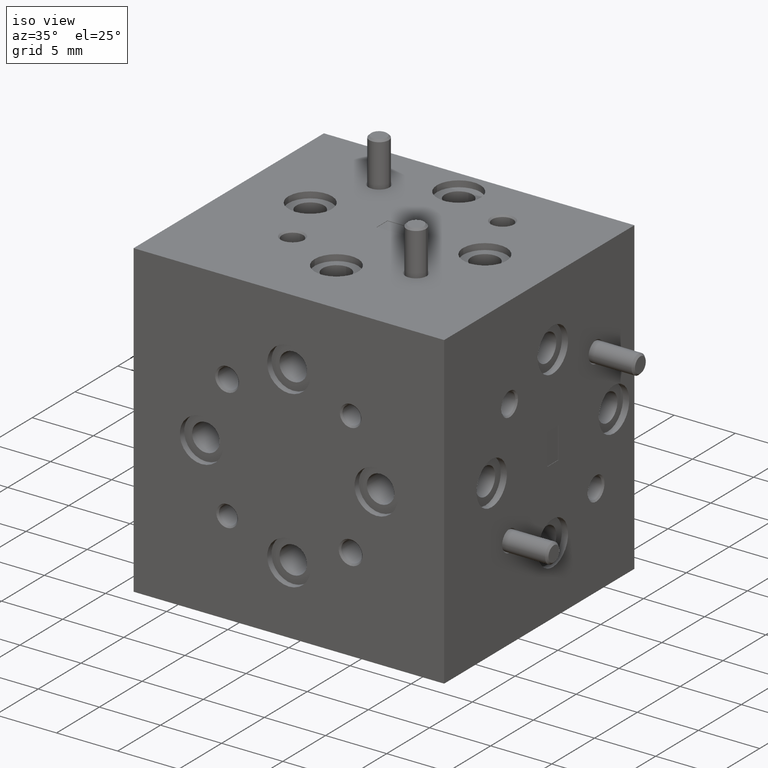
[diagram: clean part render]
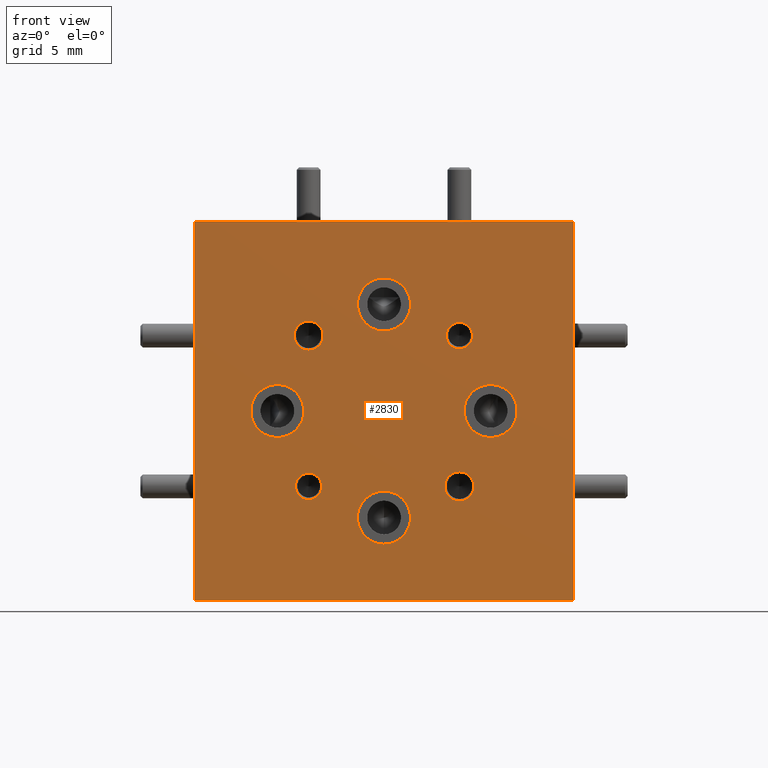
[diagram: tour spotlight — one face highlighted and labeled with its STEP entity id]
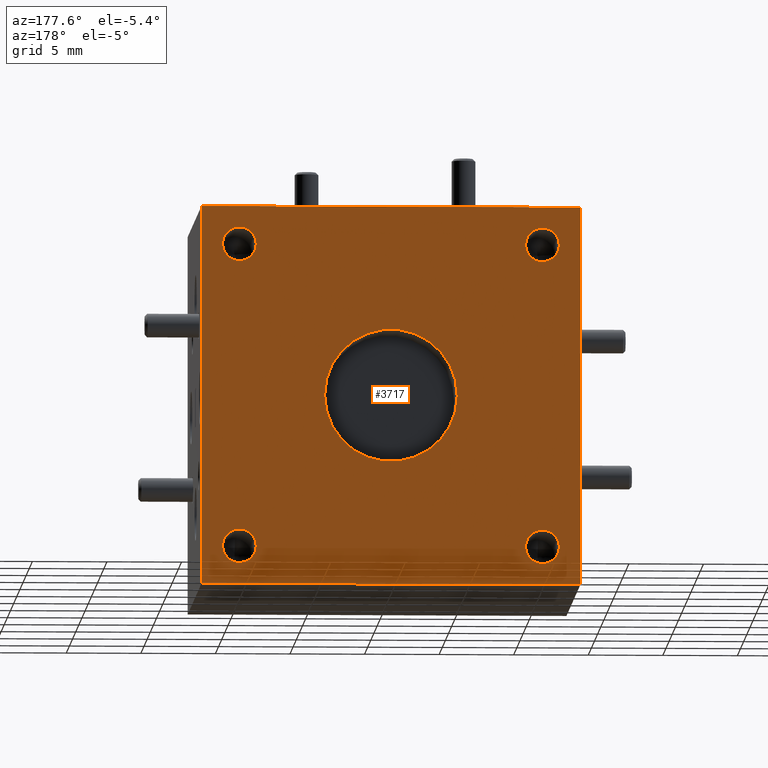
[diagram: tour spotlight — one face highlighted and labeled with its STEP entity id]
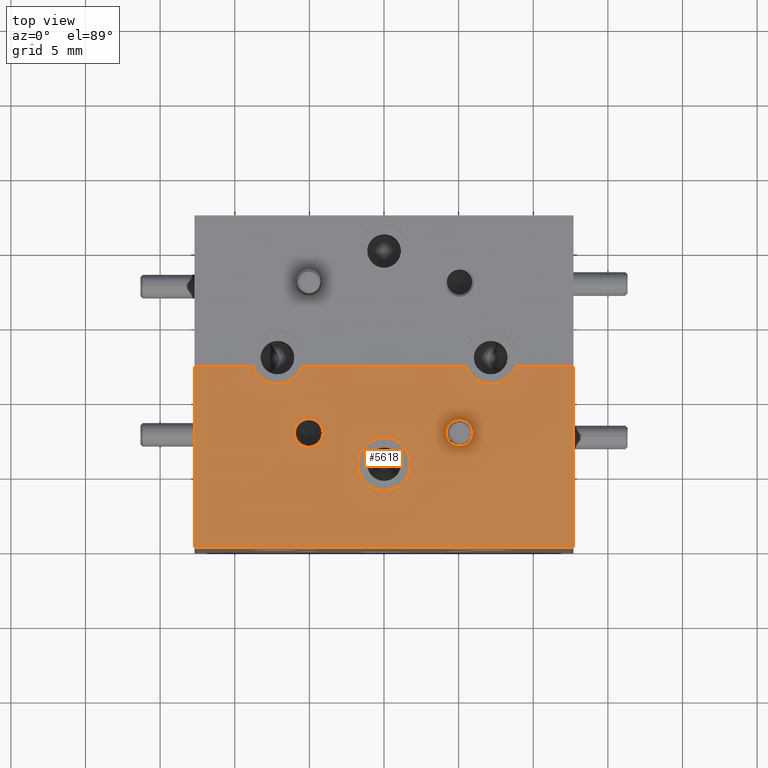
[diagram: tour spotlight — one face highlighted and labeled with its STEP entity id]
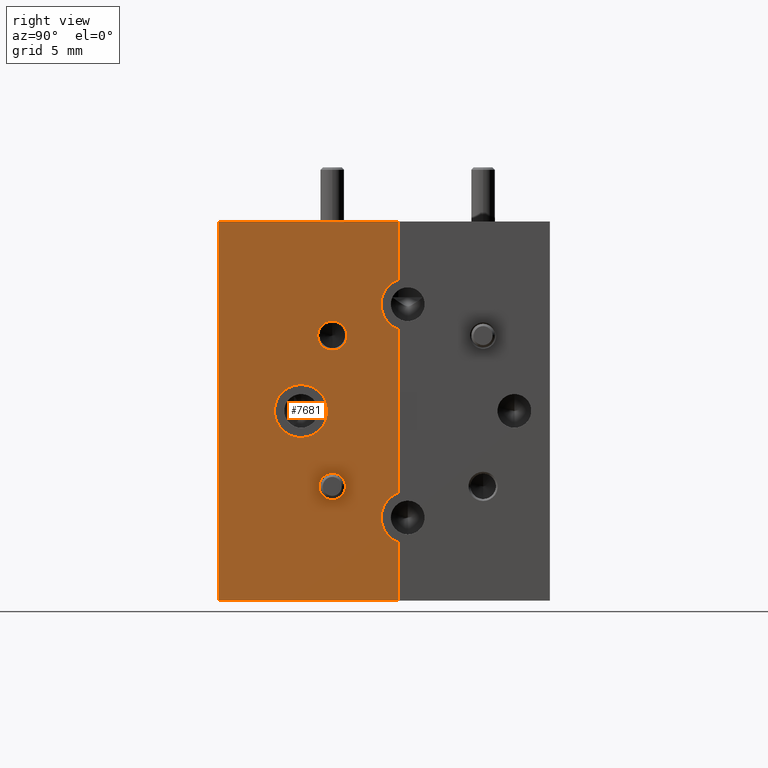
[diagram: tour spotlight — one face highlighted and labeled with its STEP entity id]
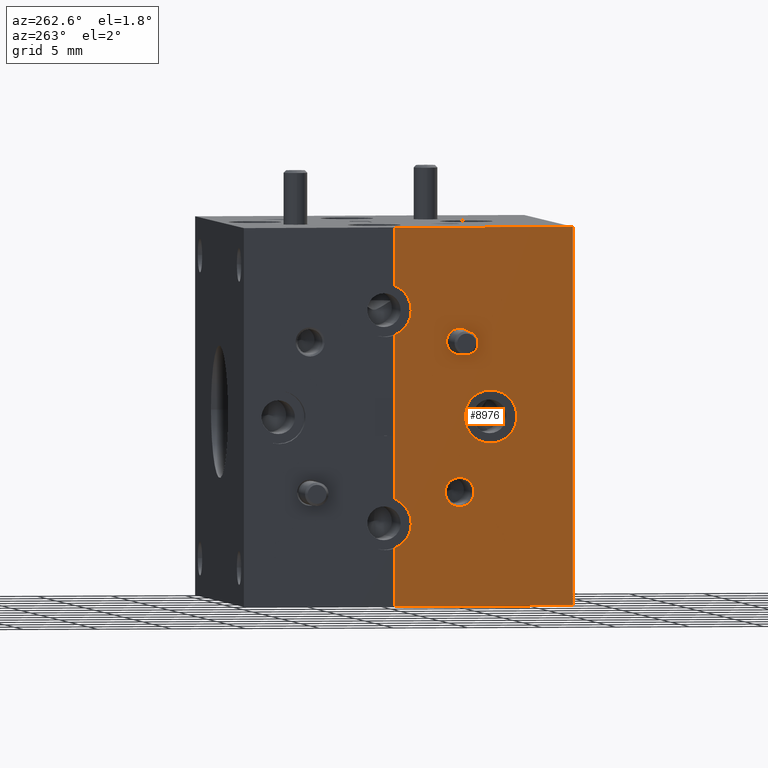
[diagram: tour spotlight — one face highlighted and labeled with its STEP entity id]
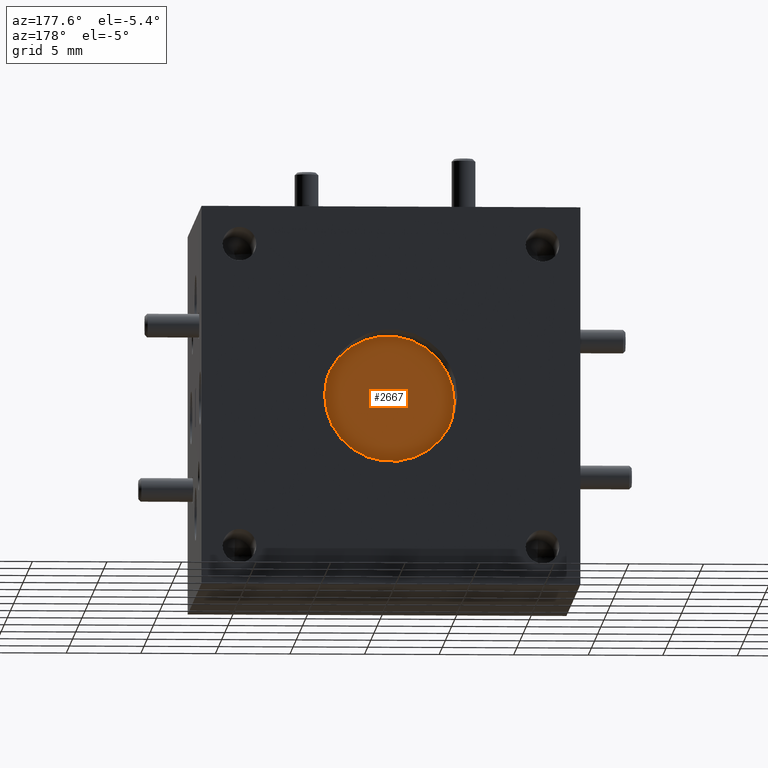
[diagram: tour spotlight — one face highlighted and labeled with its STEP entity id]
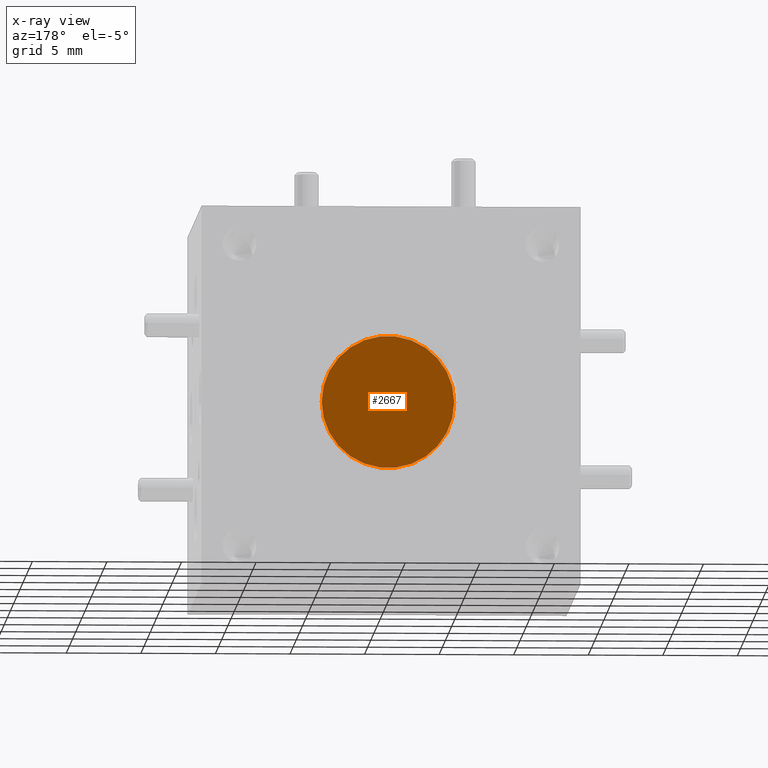
[diagram: x-ray of the same camera — body ghosted, this tour face saturated]
A machine part: a face-by-face anatomy tour. The part has 344 B-rep faces; the first image is the clean iso view, then the 6 largest visible faces are spotlighted one at a time (largest first), each with its STEP entity span.

Face 1 — front view, entity #2830. In plain terms, the highlighted planar face has unit normal (0, 1, 0).
Definition (entity closure, byte-faithful):
#31 = AXIS2_PLACEMENT_3D ( 'NONE', #5463, #2330, #782 ) ;
#141 = CARTESIAN_POINT ( 'NONE',  ( 0.1988737822087164600, 6.731956425390689800E-013, -0.1603737822083458900 ) ) ;
#231 = CARTESIAN_POINT ( 'NONE',  ( -0.1988737822087165200, 0.0000000000000000000, -0.1988737822087165400 ) ) ;
#289 = ORIENTED_EDGE ( 'NONE', *, *, #9282, .F. ) ;
#326 = ORIENTED_EDGE ( 'NONE', *, *, #3729, .F. ) ;
#369 = DIRECTION ( 'NONE',  ( 1.000000000000000000, 0.0000000000000000000, -0.0000000000000000000 ) ) ;
#380 = VERTEX_POINT ( 'NONE', #7859 ) ;
#395 = VERTEX_POINT ( 'NONE', #141 ) ;
#431 = EDGE_CURVE ( 'NONE', #2820, #1479, #4775, .T. ) ;
#509 = VERTEX_POINT ( 'NONE', #8852 ) ;
#512 = CARTESIAN_POINT ( 'NONE',  ( -0.1988737822087165200, 0.0000000000000000000, -0.1988737822087165400 ) ) ;
#535 = VERTEX_POINT ( 'NONE', #9767 ) ;
#641 = AXIS2_PLACEMENT_3D ( 'NONE', #6889, #2378, #9286 ) ;
#753 = DIRECTION ( 'NONE',  ( 0.0000000000000000000, -1.000000000000000000, 0.0000000000000000000 ) ) ;
#782 = DIRECTION ( 'NONE',  ( 0.0000000000000000000, 0.0000000000000000000, -1.000000000000000000 ) ) ;
#879 = CARTESIAN_POINT ( 'NONE',  ( 0.0000000000000000000, 0.0000000000000000000, 0.2112500000000000200 ) ) ;
#894 = FACE_BOUND ( 'NONE', #1631, .T. ) ;
#925 = VERTEX_POINT ( 'NONE', #1126 ) ;
#956 = AXIS2_PLACEMENT_3D ( 'NONE', #9488, #5561, #3344 ) ;
#991 = VECTOR ( 'NONE', #369, 39.37007874015748100 ) ;
#1103 = DIRECTION ( 'NONE',  ( -0.0000000000000000000, -1.000000000000000000, -0.0000000000000000000 ) ) ;
#1125 = AXIS2_PLACEMENT_3D ( 'NONE', #1866, #9680, #2733 ) ;
#1126 = CARTESIAN_POINT ( 'NONE',  ( -0.1988737822087165200, 1.564665939674215700E-012, 0.2373737822068490700 ) ) ;
#1133 = CARTESIAN_POINT ( 'NONE',  ( 0.4999999999999998300, 0.0000000000000000000, 0.0000000000000000000 ) ) ;
#1220 = DIRECTION ( 'NONE',  ( 0.0000000000000000000, -1.000000000000000000, 0.0000000000000000000 ) ) ;
#1273 = AXIS2_PLACEMENT_3D ( 'NONE', #8324, #6718, #4469 ) ;
#1339 = ORIENTED_EDGE ( 'NONE', *, *, #5454, .F. ) ;
#1440 = AXIS2_PLACEMENT_3D ( 'NONE', #5381, #753, #9216 ) ;
#1478 = DIRECTION ( 'NONE',  ( 0.0000000000000000000, -1.000000000000000000, 0.0000000000000000000 ) ) ;
#1479 = VERTEX_POINT ( 'NONE', #7838 ) ;
#1519 = CARTESIAN_POINT ( 'NONE',  ( 0.1988737822087164600, -6.731956415374032400E-013, 0.1988737822087164900 ) ) ;
#1614 = DIRECTION ( 'NONE',  ( 0.0000000000000000000, 1.000000000000000000, 0.0000000000000000000 ) ) ;
#1627 = FACE_BOUND ( 'NONE', #5134, .T. ) ;
#1631 = EDGE_LOOP ( 'NONE', ( #3732, #2187 ) ) ;
#1701 = EDGE_CURVE ( 'NONE', #4875, #5199, #2030, .T. ) ;
#1725 = VERTEX_POINT ( 'NONE', #5773 ) ;
#1738 = VERTEX_POINT ( 'NONE', #1900 ) ;
#1805 = CARTESIAN_POINT ( 'NONE',  ( 0.1988737822087164600, 6.731956425390689800E-013, -0.2373737822090870600 ) ) ;
#1854 = VECTOR ( 'NONE', #6324, 39.37007874015748100 ) ;
#1866 = CARTESIAN_POINT ( 'NONE',  ( -0.2812500000000000600, 0.0000000000000000000, 0.0000000000000000000 ) ) ;
#1900 = CARTESIAN_POINT ( 'NONE',  ( -0.2812500000000000600, 0.0000000000000000000, 0.06999999999999999300 ) ) ;
#1949 = CARTESIAN_POINT ( 'NONE',  ( 8.572527594031472000E-018, 0.0000000000000000000, -0.2112500000000000200 ) ) ;
#1955 = ORIENTED_EDGE ( 'NONE', *, *, #7375, .F. ) ;
#1964 = CARTESIAN_POINT ( 'NONE',  ( 0.0000000000000000000, 0.0000000000000000000, 0.2812500000000000600 ) ) ;
#2010 = EDGE_CURVE ( 'NONE', #3426, #395, #3952, .T. ) ;
#2030 = CIRCLE ( 'NONE', #4605, 0.07000000000000000700 ) ;
#2101 = LINE ( 'NONE', #9141, #3546 ) ;
#2174 = AXIS2_PLACEMENT_3D ( 'NONE', #1519, #3114, #8543 ) ;
#2187 = ORIENTED_EDGE ( 'NONE', *, *, #7141, .F. ) ;
#2199 = EDGE_LOOP ( 'NONE', ( #4373, #5364, #9072, #326 ) ) ;
#2213 = CARTESIAN_POINT ( 'NONE',  ( 0.2812500000000000600, 0.0000000000000000000, 0.0000000000000000000 ) ) ;
#2330 = DIRECTION ( 'NONE',  ( -0.0000000000000000000, -1.000000000000000000, -0.0000000000000000000 ) ) ;
#2378 = DIRECTION ( 'NONE',  ( -0.0000000000000000000, -1.000000000000000000, -0.0000000000000000000 ) ) ;
#2391 = DIRECTION ( 'NONE',  ( 0.0000000000000000000, -0.0000000000000000000, 1.000000000000000000 ) ) ;
#2424 = CIRCLE ( 'NONE', #3468, 0.06999999999999999300 ) ;
#2434 = ORIENTED_EDGE ( 'NONE', *, *, #5604, .F. ) ;
#2464 = FACE_BOUND ( 'NONE', #9968, .T. ) ;
#2540 = DIRECTION ( 'NONE',  ( 0.0000000000000000000, 0.0000000000000000000, -1.000000000000000000 ) ) ;
#2556 = EDGE_CURVE ( 'NONE', #535, #9700, #5024, .T. ) ;
#2653 = CARTESIAN_POINT ( 'NONE',  ( -0.2812500000000000600, 0.0000000000000000000, -0.06999999999999999300 ) ) ;
#2733 = DIRECTION ( 'NONE',  ( 0.0000000000000000000, 0.0000000000000000000, -1.000000000000000000 ) ) ;
#2772 = EDGE_CURVE ( 'NONE', #8835, #380, #6585, .T. ) ;
#2820 = VERTEX_POINT ( 'NONE', #5460 ) ;
#2830 = ADVANCED_FACE ( 'NONE', ( #3560, #4161, #9893, #894, #9771, #4523, #1627, #2464, #4769 ), #3859, .F. ) ;
#2862 = ORIENTED_EDGE ( 'NONE', *, *, #6152, .F. ) ;
#2884 = AXIS2_PLACEMENT_3D ( 'NONE', #7782, #1614, #2391 ) ;
#2898 = DIRECTION ( 'NONE',  ( 0.0000000000000000000, 0.0000000000000000000, -1.000000000000000000 ) ) ;
#2910 = CIRCLE ( 'NONE', #31, 0.07000000000000000700 ) ;
#3114 = DIRECTION ( 'NONE',  ( 0.0000000000000000000, -1.000000000000000000, 0.0000000000000000000 ) ) ;
#3344 = DIRECTION ( 'NONE',  ( 0.0000000000000000000, 0.0000000000000000000, -1.000000000000000000 ) ) ;
#3359 = AXIS2_PLACEMENT_3D ( 'NONE', #5178, #4354, #9069 ) ;
#3426 = VERTEX_POINT ( 'NONE', #1805 ) ;
#3429 = CIRCLE ( 'NONE', #1125, 0.06999999999999999300 ) ;
#3451 = AXIS2_PLACEMENT_3D ( 'NONE', #8364, #7011, #3996 ) ;
#3468 = AXIS2_PLACEMENT_3D ( 'NONE', #2213, #5289, #2898 ) ;
#3490 = EDGE_CURVE ( 'NONE', #1479, #8539, #7792, .T. ) ;
#3510 = CIRCLE ( 'NONE', #4711, 0.03850000000037058500 ) ;
#3515 = EDGE_CURVE ( 'NONE', #9700, #535, #5708, .T. ) ;
#3545 = CARTESIAN_POINT ( 'NONE',  ( 0.1988737822087164600, 6.731956425390689800E-013, -0.1988737822087164900 ) ) ;
#3546 = VECTOR ( 'NONE', #8321, 39.37007874015748100 ) ;
#3556 = EDGE_CURVE ( 'NONE', #8809, #2820, #7164, .T. ) ;
#3560 = FACE_OUTER_BOUND ( 'NONE', #2199, .T. ) ;
#3625 = EDGE_LOOP ( 'NONE', ( #9916, #2862 ) ) ;
#3729 = EDGE_CURVE ( 'NONE', #8539, #8809, #2101, .T. ) ;
#3732 = ORIENTED_EDGE ( 'NONE', *, *, #2772, .F. ) ;
#3813 = AXIS2_PLACEMENT_3D ( 'NONE', #6950, #1478, #9958 ) ;
#3819 = ORIENTED_EDGE ( 'NONE', *, *, #7156, .F. ) ;
#3859 = PLANE ( 'NONE',  #2884 ) ;
#3952 = CIRCLE ( 'NONE', #3451, 0.03850000000037058500 ) ;
#3996 = DIRECTION ( 'NONE',  ( 0.0000000000000000000, 0.0000000000000000000, -1.000000000000000000 ) ) ;
#4043 = CIRCLE ( 'NONE', #956, 0.07000000000000000700 ) ;
#4161 = FACE_BOUND ( 'NONE', #3625, .T. ) ;
#4250 = CARTESIAN_POINT ( 'NONE',  ( -0.1988737822087165200, 0.0000000000000000000, -0.2336237822091574200 ) ) ;
#4354 = DIRECTION ( 'NONE',  ( -0.0000000000000000000, -1.000000000000000000, -0.0000000000000000000 ) ) ;
#4373 = ORIENTED_EDGE ( 'NONE', *, *, #3490, .F. ) ;
#4420 = VECTOR ( 'NONE', #5030, 39.37007874015748100 ) ;
#4469 = DIRECTION ( 'NONE',  ( 0.0000000000000000000, 0.0000000000000000000, -1.000000000000000000 ) ) ;
#4523 = FACE_BOUND ( 'NONE', #6538, .T. ) ;
#4585 = DIRECTION ( 'NONE',  ( 0.0000000000000000000, 0.0000000000000000000, -1.000000000000000000 ) ) ;
#4605 = AXIS2_PLACEMENT_3D ( 'NONE', #1964, #1103, #7260 ) ;
#4649 = EDGE_CURVE ( 'NONE', #8212, #509, #2424, .T. ) ;
#4703 = CIRCLE ( 'NONE', #3813, 0.03849999999813266000 ) ;
#4711 = AXIS2_PLACEMENT_3D ( 'NONE', #3545, #9600, #6521 ) ;
#4769 = FACE_BOUND ( 'NONE', #8523, .T. ) ;
#4775 = LINE ( 'NONE', #1133, #4420 ) ;
#4789 = VERTEX_POINT ( 'NONE', #8900 ) ;
#4829 = ORIENTED_EDGE ( 'NONE', *, *, #2556, .F. ) ;
#4839 = VERTEX_POINT ( 'NONE', #1949 ) ;
#4875 = VERTEX_POINT ( 'NONE', #8145 ) ;
#5024 = CIRCLE ( 'NONE', #8726, 0.03475000000044087300 ) ;
#5030 = DIRECTION ( 'NONE',  ( -0.0000000000000000000, 0.0000000000000000000, -1.000000000000000000 ) ) ;
#5134 = EDGE_LOOP ( 'NONE', ( #3819, #8868 ) ) ;
#5178 = CARTESIAN_POINT ( 'NONE',  ( 0.0000000000000000000, 0.0000000000000000000, -0.2812500000000000600 ) ) ;
#5199 = VERTEX_POINT ( 'NONE', #879 ) ;
#5289 = DIRECTION ( 'NONE',  ( -0.0000000000000000000, -1.000000000000000000, -0.0000000000000000000 ) ) ;
#5327 = ORIENTED_EDGE ( 'NONE', *, *, #1701, .F. ) ;
#5364 = ORIENTED_EDGE ( 'NONE', *, *, #431, .F. ) ;
#5381 = CARTESIAN_POINT ( 'NONE',  ( -0.1988737822087165200, 1.564665939674215700E-012, 0.1988737822087164000 ) ) ;
#5393 = EDGE_CURVE ( 'NONE', #395, #3426, #3510, .T. ) ;
#5426 = DIRECTION ( 'NONE',  ( 0.0000000000000000000, -1.000000000000000000, 0.0000000000000000000 ) ) ;
#5454 = EDGE_CURVE ( 'NONE', #1725, #4839, #6405, .T. ) ;
#5460 = CARTESIAN_POINT ( 'NONE',  ( 0.4999999999999998300, 0.0000000000000000000, 0.4999999999999998300 ) ) ;
#5463 = CARTESIAN_POINT ( 'NONE',  ( 0.0000000000000000000, 0.0000000000000000000, -0.2812500000000000600 ) ) ;
#5516 = CIRCLE ( 'NONE', #7174, 0.03475000000200567700 ) ;
#5561 = DIRECTION ( 'NONE',  ( -0.0000000000000000000, -1.000000000000000000, -0.0000000000000000000 ) ) ;
#5604 = EDGE_CURVE ( 'NONE', #4839, #1725, #2910, .T. ) ;
#5708 = CIRCLE ( 'NONE', #5925, 0.03475000000044087300 ) ;
#5773 = CARTESIAN_POINT ( 'NONE',  ( 0.0000000000000000000, 0.0000000000000000000, -0.3512500000000000600 ) ) ;
#5832 = CARTESIAN_POINT ( 'NONE',  ( -0.5000000000000001100, 0.0000000000000000000, -0.5000000000000000000 ) ) ;
#5925 = AXIS2_PLACEMENT_3D ( 'NONE', #231, #7111, #2540 ) ;
#5935 = EDGE_LOOP ( 'NONE', ( #7978, #9040 ) ) ;
#6152 = EDGE_CURVE ( 'NONE', #925, #4789, #4703, .T. ) ;
#6324 = DIRECTION ( 'NONE',  ( -1.000000000000000000, -0.0000000000000000000, 0.0000000000000000000 ) ) ;
#6405 = CIRCLE ( 'NONE', #3359, 0.07000000000000000700 ) ;
#6521 = DIRECTION ( 'NONE',  ( 0.0000000000000000000, 0.0000000000000000000, -1.000000000000000000 ) ) ;
#6538 = EDGE_LOOP ( 'NONE', ( #1955, #5327 ) ) ;
#6585 = CIRCLE ( 'NONE', #2174, 0.03475000000200567700 ) ;
#6633 = DIRECTION ( 'NONE',  ( 0.0000000000000000000, 0.0000000000000000000, -1.000000000000000000 ) ) ;
#6718 = DIRECTION ( 'NONE',  ( -0.0000000000000000000, -1.000000000000000000, -0.0000000000000000000 ) ) ;
#6889 = CARTESIAN_POINT ( 'NONE',  ( 0.2812500000000000600, 0.0000000000000000000, 0.0000000000000000000 ) ) ;
#6950 = CARTESIAN_POINT ( 'NONE',  ( -0.1988737822087165200, 1.564665939674215700E-012, 0.1988737822087164000 ) ) ;
#7011 = DIRECTION ( 'NONE',  ( 0.0000000000000000000, -1.000000000000000000, 0.0000000000000000000 ) ) ;
#7059 = ORIENTED_EDGE ( 'NONE', *, *, #3515, .F. ) ;
#7111 = DIRECTION ( 'NONE',  ( 0.0000000000000000000, -1.000000000000000000, 0.0000000000000000000 ) ) ;
#7115 = CARTESIAN_POINT ( 'NONE',  ( 0.1988737822087164600, -6.731956415374032400E-013, 0.1641237822067108100 ) ) ;
#7141 = EDGE_CURVE ( 'NONE', #380, #8835, #5516, .T. ) ;
#7156 = EDGE_CURVE ( 'NONE', #509, #8212, #8341, .T. ) ;
#7164 = LINE ( 'NONE', #9477, #991 ) ;
#7174 = AXIS2_PLACEMENT_3D ( 'NONE', #10081, #5426, #4585 ) ;
#7260 = DIRECTION ( 'NONE',  ( 0.0000000000000000000, 0.0000000000000000000, -1.000000000000000000 ) ) ;
#7277 = EDGE_LOOP ( 'NONE', ( #7059, #4829 ) ) ;
#7335 = CIRCLE ( 'NONE', #1440, 0.03849999999813266000 ) ;
#7375 = EDGE_CURVE ( 'NONE', #5199, #4875, #4043, .T. ) ;
#7571 = VERTEX_POINT ( 'NONE', #2653 ) ;
#7782 = CARTESIAN_POINT ( 'NONE',  ( 0.0000000000000000000, 0.0000000000000000000, 0.0000000000000000000 ) ) ;
#7792 = LINE ( 'NONE', #9610, #1854 ) ;
#7838 = CARTESIAN_POINT ( 'NONE',  ( 0.4999999999999998300, 0.0000000000000000000, -0.5000000000000001100 ) ) ;
#7859 = CARTESIAN_POINT ( 'NONE',  ( 0.1988737822087164600, -6.731956415374032400E-013, 0.2336237822107221600 ) ) ;
#7978 = ORIENTED_EDGE ( 'NONE', *, *, #2010, .F. ) ;
#8145 = CARTESIAN_POINT ( 'NONE',  ( 8.572527594031472000E-018, 0.0000000000000000000, 0.3512500000000000600 ) ) ;
#8212 = VERTEX_POINT ( 'NONE', #8524 ) ;
#8255 = EDGE_CURVE ( 'NONE', #4789, #925, #7335, .T. ) ;
#8321 = DIRECTION ( 'NONE',  ( 0.0000000000000000000, -0.0000000000000000000, 1.000000000000000000 ) ) ;
#8324 = CARTESIAN_POINT ( 'NONE',  ( -0.2812500000000000600, 0.0000000000000000000, 0.0000000000000000000 ) ) ;
#8341 = CIRCLE ( 'NONE', #641, 0.06999999999999999300 ) ;
#8364 = CARTESIAN_POINT ( 'NONE',  ( 0.1988737822087164600, 6.731956425390689800E-013, -0.1988737822087164900 ) ) ;
#8523 = EDGE_LOOP ( 'NONE', ( #9399, #289 ) ) ;
#8524 = CARTESIAN_POINT ( 'NONE',  ( 0.2812500000000000600, 0.0000000000000000000, 0.06999999999999999300 ) ) ;
#8539 = VERTEX_POINT ( 'NONE', #5832 ) ;
#8543 = DIRECTION ( 'NONE',  ( 0.0000000000000000000, 0.0000000000000000000, -1.000000000000000000 ) ) ;
#8726 = AXIS2_PLACEMENT_3D ( 'NONE', #512, #1220, #6633 ) ;
#8809 = VERTEX_POINT ( 'NONE', #9349 ) ;
#8835 = VERTEX_POINT ( 'NONE', #7115 ) ;
#8852 = CARTESIAN_POINT ( 'NONE',  ( 0.2812500000000000600, 0.0000000000000000000, -0.06999999999999999300 ) ) ;
#8868 = ORIENTED_EDGE ( 'NONE', *, *, #4649, .F. ) ;
#8900 = CARTESIAN_POINT ( 'NONE',  ( -0.1988737822087165200, 1.564665939674215700E-012, 0.1603737822105837700 ) ) ;
#9040 = ORIENTED_EDGE ( 'NONE', *, *, #5393, .F. ) ;
#9069 = DIRECTION ( 'NONE',  ( 0.0000000000000000000, 0.0000000000000000000, -1.000000000000000000 ) ) ;
#9072 = ORIENTED_EDGE ( 'NONE', *, *, #3556, .F. ) ;
#9141 = CARTESIAN_POINT ( 'NONE',  ( -0.5000000000000001100, 0.0000000000000000000, 0.0000000000000000000 ) ) ;
#9216 = DIRECTION ( 'NONE',  ( 0.0000000000000000000, 0.0000000000000000000, -1.000000000000000000 ) ) ;
#9282 = EDGE_CURVE ( 'NONE', #1738, #7571, #10002, .T. ) ;
#9286 = DIRECTION ( 'NONE',  ( 0.0000000000000000000, 0.0000000000000000000, -1.000000000000000000 ) ) ;
#9349 = CARTESIAN_POINT ( 'NONE',  ( -0.5000000000000001100, 0.0000000000000000000, 0.5000000000000000000 ) ) ;
#9399 = ORIENTED_EDGE ( 'NONE', *, *, #9671, .F. ) ;
#9477 = CARTESIAN_POINT ( 'NONE',  ( 0.0000000000000000000, 0.0000000000000000000, 0.5000000000000000000 ) ) ;
#9488 = CARTESIAN_POINT ( 'NONE',  ( 0.0000000000000000000, 0.0000000000000000000, 0.2812500000000000600 ) ) ;
#9600 = DIRECTION ( 'NONE',  ( 0.0000000000000000000, -1.000000000000000000, 0.0000000000000000000 ) ) ;
#9610 = CARTESIAN_POINT ( 'NONE',  ( 0.0000000000000000000, 0.0000000000000000000, -0.5000000000000001100 ) ) ;
#9671 = EDGE_CURVE ( 'NONE', #7571, #1738, #3429, .T. ) ;
#9680 = DIRECTION ( 'NONE',  ( -0.0000000000000000000, -1.000000000000000000, -0.0000000000000000000 ) ) ;
#9700 = VERTEX_POINT ( 'NONE', #4250 ) ;
#9767 = CARTESIAN_POINT ( 'NONE',  ( -0.1988737822087165200, 0.0000000000000000000, -0.1641237822082756700 ) ) ;
#9771 = FACE_BOUND ( 'NONE', #7277, .T. ) ;
#9893 = FACE_BOUND ( 'NONE', #5935, .T. ) ;
#9916 = ORIENTED_EDGE ( 'NONE', *, *, #8255, .F. ) ;
#9958 = DIRECTION ( 'NONE',  ( 0.0000000000000000000, 0.0000000000000000000, -1.000000000000000000 ) ) ;
#9968 = EDGE_LOOP ( 'NONE', ( #1339, #2434 ) ) ;
#10002 = CIRCLE ( 'NONE', #1273, 0.06999999999999999300 ) ;
#10081 = CARTESIAN_POINT ( 'NONE',  ( 0.1988737822087164600, -6.731956415374032400E-013, 0.1988737822087164900 ) ) ;

Face 2 — auxiliary view, entity #3717. In plain terms, the highlighted planar face has unit normal (-0, -1, -0).
Definition (entity closure, byte-faithful):
#58 = CIRCLE ( 'NONE', #845, 0.1749999999999999900 ) ;
#97 = VERTEX_POINT ( 'NONE', #9848 ) ;
#105 = VECTOR ( 'NONE', #5751, 39.37007874015748100 ) ;
#150 = ORIENTED_EDGE ( 'NONE', *, *, #1548, .F. ) ;
#230 = VERTEX_POINT ( 'NONE', #9300 ) ;
#530 = VERTEX_POINT ( 'NONE', #4349 ) ;
#598 = CARTESIAN_POINT ( 'NONE',  ( -0.4999999999999997200, 0.8750000000000001100, 0.5000000000000003300 ) ) ;
#608 = CIRCLE ( 'NONE', #5738, 0.04449999999999969300 ) ;
#629 = CIRCLE ( 'NONE', #5857, 0.04449999999999969300 ) ;
#770 = FACE_BOUND ( 'NONE', #7070, .T. ) ;
#790 = CARTESIAN_POINT ( 'NONE',  ( -3.414809992080329000E-017, 0.8750000000000001100, 0.4999999999999998300 ) ) ;
#792 = VERTEX_POINT ( 'NONE', #5661 ) ;
#845 = AXIS2_PLACEMENT_3D ( 'NONE', #9565, #3245, #9598 ) ;
#862 = ORIENTED_EDGE ( 'NONE', *, *, #6317, .F. ) ;
#1000 = LINE ( 'NONE', #790, #4519 ) ;
#1188 = CARTESIAN_POINT ( 'NONE',  ( -0.4000000000000000800, 0.8750000000000001100, -0.3999999999999996300 ) ) ;
#1257 = DIRECTION ( 'NONE',  ( 7.679050901318858200E-018, 1.000000000000000000, 1.103398394531812400E-018 ) ) ;
#1279 = CARTESIAN_POINT ( 'NONE',  ( 0.4999999999999997800, 0.8750000000000001100, -0.5000000000000001100 ) ) ;
#1287 = EDGE_CURVE ( 'NONE', #7600, #6377, #3460, .T. ) ;
#1369 = VECTOR ( 'NONE', #9622, 39.37007874015748100 ) ;
#1385 = CIRCLE ( 'NONE', #6969, 0.04449999999999969300 ) ;
#1493 = FACE_BOUND ( 'NONE', #6359, .T. ) ;
#1548 = EDGE_CURVE ( 'NONE', #3391, #530, #10028, .T. ) ;
#1597 = LINE ( 'NONE', #5864, #1369 ) ;
#1620 = DIRECTION ( 'NONE',  ( -1.000000000000000000, 0.0000000000000000000, 0.0000000000000000000 ) ) ;
#1658 = CARTESIAN_POINT ( 'NONE',  ( -0.3999999999999996900, 0.8750000000000001100, 0.3999999999999998600 ) ) ;
#1660 = ORIENTED_EDGE ( 'NONE', *, *, #8865, .F. ) ;
#1915 = CARTESIAN_POINT ( 'NONE',  ( 0.3554999999999998700, 0.8750000000000001100, -0.4000000000000001900 ) ) ;
#1947 = PLANE ( 'NONE',  #4031 ) ;
#1986 = FACE_BOUND ( 'NONE', #6037, .T. ) ;
#2013 = CIRCLE ( 'NONE', #3055, 0.04449999999999975500 ) ;
#2035 = ORIENTED_EDGE ( 'NONE', *, *, #4065, .F. ) ;
#2043 = ORIENTED_EDGE ( 'NONE', *, *, #8312, .F. ) ;
#2047 = DIRECTION ( 'NONE',  ( -1.000000000000000000, 0.0000000000000000000, 0.0000000000000000000 ) ) ;
#2074 = CARTESIAN_POINT ( 'NONE',  ( 0.3999999999999999700, 0.8750000000000001100, 0.3999999999999994100 ) ) ;
#2089 = CARTESIAN_POINT ( 'NONE',  ( 0.4444999999999996700, 0.8750000000000001100, 0.3999999999999994100 ) ) ;
#2123 = ORIENTED_EDGE ( 'NONE', *, *, #9717, .F. ) ;
#2166 = ORIENTED_EDGE ( 'NONE', *, *, #1287, .F. ) ;
#2183 = ORIENTED_EDGE ( 'NONE', *, *, #5620, .F. ) ;
#2232 = ORIENTED_EDGE ( 'NONE', *, *, #4433, .F. ) ;
#2443 = DIRECTION ( 'NONE',  ( 7.679050901318858200E-018, 1.000000000000000000, 1.103398394531812400E-018 ) ) ;
#2482 = EDGE_LOOP ( 'NONE', ( #2232, #2166 ) ) ;
#2706 = CARTESIAN_POINT ( 'NONE',  ( -3.414809992080329000E-017, 0.8750000000000001100, 0.0000000000000000000 ) ) ;
#3055 = AXIS2_PLACEMENT_3D ( 'NONE', #6203, #2443, #5451 ) ;
#3174 = DIRECTION ( 'NONE',  ( -1.000000000000000000, 0.0000000000000000000, 0.0000000000000000000 ) ) ;
#3205 = CARTESIAN_POINT ( 'NONE',  ( 0.3999999999999995800, 0.8750000000000001100, -0.4000000000000001900 ) ) ;
#3245 = DIRECTION ( 'NONE',  ( 7.679050901318858200E-018, 1.000000000000000000, 1.103398394531812400E-018 ) ) ;
#3345 = DIRECTION ( 'NONE',  ( -1.000000000000000000, 0.0000000000000000000, 0.0000000000000000000 ) ) ;
#3348 = CARTESIAN_POINT ( 'NONE',  ( 0.1749999999999999300, 0.8750000000000001100, 2.132649613759815700E-017 ) ) ;
#3365 = CIRCLE ( 'NONE', #3375, 0.1749999999999999900 ) ;
#3375 = AXIS2_PLACEMENT_3D ( 'NONE', #6479, #4937, #3345 ) ;
#3391 = VERTEX_POINT ( 'NONE', #6983 ) ;
#3460 = CIRCLE ( 'NONE', #9832, 0.04449999999999969300 ) ;
#3658 = VERTEX_POINT ( 'NONE', #7270 ) ;
#3697 = DIRECTION ( 'NONE',  ( -8.473052436043294900E-036, -1.103398394531812400E-018, 1.000000000000000000 ) ) ;
#3703 = VERTEX_POINT ( 'NONE', #1915 ) ;
#3717 = ADVANCED_FACE ( 'NONE', ( #9624, #770, #1986, #1493, #8536, #8774 ), #1947, .F. ) ;
#3742 = EDGE_CURVE ( 'NONE', #7688, #792, #7433, .T. ) ;
#3830 = EDGE_LOOP ( 'NONE', ( #10075, #2035, #4006, #3953 ) ) ;
#3898 = DIRECTION ( 'NONE',  ( -1.000000000000000000, 7.679050901318858200E-018, -0.0000000000000000000 ) ) ;
#3953 = ORIENTED_EDGE ( 'NONE', *, *, #3742, .F. ) ;
#3971 = CIRCLE ( 'NONE', #9743, 0.04449999999999969300 ) ;
#4006 = ORIENTED_EDGE ( 'NONE', *, *, #9350, .F. ) ;
#4031 = AXIS2_PLACEMENT_3D ( 'NONE', #2706, #9825, #5991 ) ;
#4065 = EDGE_CURVE ( 'NONE', #8155, #7221, #1597, .T. ) ;
#4108 = LINE ( 'NONE', #7315, #105 ) ;
#4128 = CARTESIAN_POINT ( 'NONE',  ( 0.3555000000000002600, 0.8750000000000001100, 0.3999999999999994100 ) ) ;
#4167 = DIRECTION ( 'NONE',  ( 7.679050901318858200E-018, 1.000000000000000000, 1.103398394531812400E-018 ) ) ;
#4203 = DIRECTION ( 'NONE',  ( -1.000000000000000000, 0.0000000000000000000, 0.0000000000000000000 ) ) ;
#4263 = DIRECTION ( 'NONE',  ( -1.000000000000000000, 0.0000000000000000000, 0.0000000000000000000 ) ) ;
#4349 = CARTESIAN_POINT ( 'NONE',  ( -0.3554999999999999300, 0.8750000000000001100, 0.3999999999999998600 ) ) ;
#4433 = EDGE_CURVE ( 'NONE', #6377, #7600, #629, .T. ) ;
#4519 = VECTOR ( 'NONE', #3898, 39.37007874015748100 ) ;
#4731 = CIRCLE ( 'NONE', #9209, 0.04449999999999969300 ) ;
#4785 = EDGE_CURVE ( 'NONE', #9384, #3703, #4731, .T. ) ;
#4851 = EDGE_CURVE ( 'NONE', #7221, #7688, #4108, .T. ) ;
#4937 = DIRECTION ( 'NONE',  ( 7.679050901318858200E-018, 1.000000000000000000, 1.103398394531812400E-018 ) ) ;
#5361 = VECTOR ( 'NONE', #3697, 39.37007874015748100 ) ;
#5451 = DIRECTION ( 'NONE',  ( -1.000000000000000000, 0.0000000000000000000, 0.0000000000000000000 ) ) ;
#5510 = EDGE_LOOP ( 'NONE', ( #862, #2123 ) ) ;
#5620 = EDGE_CURVE ( 'NONE', #3703, #9384, #608, .T. ) ;
#5661 = CARTESIAN_POINT ( 'NONE',  ( 0.5000000000000001100, 0.8750000000000001100, 0.4999999999999998300 ) ) ;
#5738 = AXIS2_PLACEMENT_3D ( 'NONE', #3205, #8637, #1620 ) ;
#5751 = DIRECTION ( 'NONE',  ( 1.000000000000000000, -7.679050901318858200E-018, 0.0000000000000000000 ) ) ;
#5771 = AXIS2_PLACEMENT_3D ( 'NONE', #1658, #6256, #3174 ) ;
#5857 = AXIS2_PLACEMENT_3D ( 'NONE', #6465, #4167, #7172 ) ;
#5864 = CARTESIAN_POINT ( 'NONE',  ( -0.4999999999999997200, 0.8750000000000001100, 0.0000000000000000000 ) ) ;
#5991 = DIRECTION ( 'NONE',  ( 1.000000000000000000, -7.679050901318858200E-018, 0.0000000000000000000 ) ) ;
#6037 = EDGE_LOOP ( 'NONE', ( #150, #1660 ) ) ;
#6189 = CARTESIAN_POINT ( 'NONE',  ( 0.4444999999999992300, 0.8750000000000001100, -0.4000000000000001900 ) ) ;
#6203 = CARTESIAN_POINT ( 'NONE',  ( -0.3999999999999996900, 0.8750000000000001100, 0.3999999999999998600 ) ) ;
#6256 = DIRECTION ( 'NONE',  ( 7.679050901318858200E-018, 1.000000000000000000, 1.103398394531812400E-018 ) ) ;
#6317 = EDGE_CURVE ( 'NONE', #97, #3658, #3971, .T. ) ;
#6359 = EDGE_LOOP ( 'NONE', ( #2183, #7911 ) ) ;
#6377 = VERTEX_POINT ( 'NONE', #4128 ) ;
#6462 = DIRECTION ( 'NONE',  ( 7.679050901318858200E-018, 1.000000000000000000, 1.103398394531812400E-018 ) ) ;
#6465 = CARTESIAN_POINT ( 'NONE',  ( 0.3999999999999999700, 0.8750000000000001100, 0.3999999999999994100 ) ) ;
#6479 = CARTESIAN_POINT ( 'NONE',  ( -3.414809992080329000E-017, 0.8750000000000001100, 0.0000000000000000000 ) ) ;
#6532 = CARTESIAN_POINT ( 'NONE',  ( 0.3999999999999995800, 0.8750000000000001100, -0.4000000000000001900 ) ) ;
#6797 = EDGE_CURVE ( 'NONE', #8355, #230, #3365, .T. ) ;
#6969 = AXIS2_PLACEMENT_3D ( 'NONE', #1188, #1257, #8249 ) ;
#6983 = CARTESIAN_POINT ( 'NONE',  ( -0.4444999999999994500, 0.8750000000000001100, 0.3999999999999998600 ) ) ;
#7070 = EDGE_LOOP ( 'NONE', ( #2043, #10003 ) ) ;
#7171 = CARTESIAN_POINT ( 'NONE',  ( -0.4000000000000000800, 0.8750000000000001100, -0.3999999999999996300 ) ) ;
#7172 = DIRECTION ( 'NONE',  ( -1.000000000000000000, 0.0000000000000000000, 0.0000000000000000000 ) ) ;
#7221 = VERTEX_POINT ( 'NONE', #9413 ) ;
#7270 = CARTESIAN_POINT ( 'NONE',  ( -0.3555000000000004300, 0.8750000000000001100, -0.3999999999999996300 ) ) ;
#7315 = CARTESIAN_POINT ( 'NONE',  ( -3.414809992080329000E-017, 0.8750000000000001100, -0.4999999999999997200 ) ) ;
#7433 = LINE ( 'NONE', #9045, #5361 ) ;
#7600 = VERTEX_POINT ( 'NONE', #2089 ) ;
#7688 = VERTEX_POINT ( 'NONE', #1279 ) ;
#7911 = ORIENTED_EDGE ( 'NONE', *, *, #4785, .F. ) ;
#8155 = VERTEX_POINT ( 'NONE', #598 ) ;
#8249 = DIRECTION ( 'NONE',  ( -1.000000000000000000, 0.0000000000000000000, 0.0000000000000000000 ) ) ;
#8312 = EDGE_CURVE ( 'NONE', #230, #8355, #58, .T. ) ;
#8355 = VERTEX_POINT ( 'NONE', #3348 ) ;
#8536 = FACE_BOUND ( 'NONE', #2482, .T. ) ;
#8637 = DIRECTION ( 'NONE',  ( 7.679050901318858200E-018, 1.000000000000000000, 1.103398394531812400E-018 ) ) ;
#8762 = DIRECTION ( 'NONE',  ( 7.679050901318858200E-018, 1.000000000000000000, 1.103398394531812400E-018 ) ) ;
#8774 = FACE_BOUND ( 'NONE', #5510, .T. ) ;
#8865 = EDGE_CURVE ( 'NONE', #530, #3391, #2013, .T. ) ;
#8932 = DIRECTION ( 'NONE',  ( 7.679050901318858200E-018, 1.000000000000000000, 1.103398394531812400E-018 ) ) ;
#9045 = CARTESIAN_POINT ( 'NONE',  ( 0.4999999999999997200, 0.8750000000000001100, 0.0000000000000000000 ) ) ;
#9209 = AXIS2_PLACEMENT_3D ( 'NONE', #6532, #6462, #4263 ) ;
#9300 = CARTESIAN_POINT ( 'NONE',  ( -0.1750000000000000200, 0.8750000000000001100, 0.0000000000000000000 ) ) ;
#9350 = EDGE_CURVE ( 'NONE', #792, #8155, #1000, .T. ) ;
#9384 = VERTEX_POINT ( 'NONE', #6189 ) ;
#9413 = CARTESIAN_POINT ( 'NONE',  ( -0.5000000000000002200, 0.8750000000000001100, -0.4999999999999997200 ) ) ;
#9565 = CARTESIAN_POINT ( 'NONE',  ( -3.414809992080329000E-017, 0.8750000000000001100, 0.0000000000000000000 ) ) ;
#9598 = DIRECTION ( 'NONE',  ( -1.000000000000000000, 0.0000000000000000000, 0.0000000000000000000 ) ) ;
#9622 = DIRECTION ( 'NONE',  ( 8.473052436043294900E-036, 1.103398394531812400E-018, -1.000000000000000000 ) ) ;
#9624 = FACE_OUTER_BOUND ( 'NONE', #3830, .T. ) ;
#9717 = EDGE_CURVE ( 'NONE', #3658, #97, #1385, .T. ) ;
#9743 = AXIS2_PLACEMENT_3D ( 'NONE', #7171, #8762, #4203 ) ;
#9825 = DIRECTION ( 'NONE',  ( -7.679050901318858200E-018, -1.000000000000000000, -1.103398394531812400E-018 ) ) ;
#9832 = AXIS2_PLACEMENT_3D ( 'NONE', #2074, #8932, #2047 ) ;
#9848 = CARTESIAN_POINT ( 'NONE',  ( -0.4444999999999997800, 0.8750000000000001100, -0.3999999999999996300 ) ) ;
#10003 = ORIENTED_EDGE ( 'NONE', *, *, #6797, .F. ) ;
#10028 = CIRCLE ( 'NONE', #5771, 0.04449999999999975500 ) ;
#10075 = ORIENTED_EDGE ( 'NONE', *, *, #4851, .F. ) ;

Face 3 — top view, entity #5618. In plain terms, the highlighted planar face has unit normal (-0, 0, -1).
Definition (entity closure, byte-faithful):
#53 = DIRECTION ( 'NONE',  ( -1.000000000000000000, 0.0000000000000000000, 1.365923996832131600E-016 ) ) ;
#102 = ORIENTED_EDGE ( 'NONE', *, *, #3556, .T. ) ;
#209 = VERTEX_POINT ( 'NONE', #741 ) ;
#236 = CARTESIAN_POINT ( 'NONE',  ( -0.2158665158468881500, 0.4749999999999999800, 0.5000000000000005600 ) ) ;
#343 = FACE_OUTER_BOUND ( 'NONE', #4078, .T. ) ;
#369 = DIRECTION ( 'NONE',  ( 1.000000000000000000, 0.0000000000000000000, -0.0000000000000000000 ) ) ;
#584 = DIRECTION ( 'NONE',  ( 0.0000000000000000000, 0.0000000000000000000, 1.000000000000000000 ) ) ;
#741 = CARTESIAN_POINT ( 'NONE',  ( -0.3466334841531083000, 0.4749999999999999800, 0.5000000000000006700 ) ) ;
#756 = EDGE_CURVE ( 'NONE', #2088, #8809, #3083, .T. ) ;
#757 = AXIS2_PLACEMENT_3D ( 'NONE', #1683, #3116, #53 ) ;
#813 = LINE ( 'NONE', #9986, #8584 ) ;
#851 = DIRECTION ( 'NONE',  ( 3.991081699924453800E-015, -1.103398394531863900E-018, 1.000000000000000000 ) ) ;
#991 = VECTOR ( 'NONE', #369, 39.37007874015748100 ) ;
#992 = ORIENTED_EDGE ( 'NONE', *, *, #6865, .F. ) ;
#1038 = VERTEX_POINT ( 'NONE', #2085 ) ;
#1080 = VERTEX_POINT ( 'NONE', #2533 ) ;
#1132 = CARTESIAN_POINT ( 'NONE',  ( 0.1988737822087183200, 0.3011262177912837300, 0.4999999999998138200 ) ) ;
#1189 = EDGE_CURVE ( 'NONE', #6768, #1038, #5749, .T. ) ;
#1191 = EDGE_CURVE ( 'NONE', #2820, #7786, #3109, .T. ) ;
#1246 = VERTEX_POINT ( 'NONE', #2008 ) ;
#1282 = CARTESIAN_POINT ( 'NONE',  ( -0.2373737822077066900, 0.3011262177912836200, 0.4999999999998138700 ) ) ;
#1586 = PLANE ( 'NONE',  #757 ) ;
#1599 = EDGE_CURVE ( 'NONE', #6029, #4822, #7611, .T. ) ;
#1644 = CIRCLE ( 'NONE', #9312, 0.03475000000062732100 ) ;
#1655 = ORIENTED_EDGE ( 'NONE', *, *, #7762, .F. ) ;
#1683 = CARTESIAN_POINT ( 'NONE',  ( 0.4999999999999998300, 0.4749999999999999800, 0.4999999999999998300 ) ) ;
#1732 = DIRECTION ( 'NONE',  ( 1.000000000000000000, 0.0000000000000000000, -3.902639990948947500E-015 ) ) ;
#1800 = EDGE_CURVE ( 'NONE', #1080, #7535, #1644, .T. ) ;
#1916 = DIRECTION ( 'NONE',  ( 3.991081699924453800E-015, -1.103398394531863900E-018, 1.000000000000000000 ) ) ;
#1936 = FACE_BOUND ( 'NONE', #8107, .T. ) ;
#2008 = CARTESIAN_POINT ( 'NONE',  ( 0.2158665158468919000, 0.4749999999999999800, 0.4999999999999994400 ) ) ;
#2085 = CARTESIAN_POINT ( 'NONE',  ( -0.06999999999999813300, 0.2187500000000000000, 0.5000000000000002200 ) ) ;
#2088 = VERTEX_POINT ( 'NONE', #2812 ) ;
#2164 = CARTESIAN_POINT ( 'NONE',  ( -0.5000000000000001100, 0.4749999999999999800, 0.5000000000000000000 ) ) ;
#2206 = ORIENTED_EDGE ( 'NONE', *, *, #7958, .F. ) ;
#2339 = AXIS2_PLACEMENT_3D ( 'NONE', #3417, #8864, #8037 ) ;
#2355 = EDGE_CURVE ( 'NONE', #1246, #6287, #7199, .T. ) ;
#2533 = CARTESIAN_POINT ( 'NONE',  ( 0.1641237822080910100, 0.3011262177912837300, 0.4999999999998138200 ) ) ;
#2592 = CARTESIAN_POINT ( 'NONE',  ( -0.1988737822087144900, 0.3011262177912836200, 0.4999999999998138200 ) ) ;
#2643 = EDGE_LOOP ( 'NONE', ( #992, #7549 ) ) ;
#2666 = CARTESIAN_POINT ( 'NONE',  ( 0.4999999999999998300, 0.4749999999999999800, 0.4999999999999998300 ) ) ;
#2789 = AXIS2_PLACEMENT_3D ( 'NONE', #8939, #1916, #4229 ) ;
#2812 = CARTESIAN_POINT ( 'NONE',  ( -0.5000000000000001100, 0.4749999999999999800, 0.4999999999999999400 ) ) ;
#2820 = VERTEX_POINT ( 'NONE', #5460 ) ;
#2934 = DIRECTION ( 'NONE',  ( 1.000000000000000000, -0.0000000000000000000, -1.365923996832131600E-016 ) ) ;
#3083 = LINE ( 'NONE', #2164, #5610 ) ;
#3109 = LINE ( 'NONE', #2666, #6244 ) ;
#3116 = DIRECTION ( 'NONE',  ( -1.365923996832131600E-016, 0.0000000000000000000, -1.000000000000000000 ) ) ;
#3276 = VECTOR ( 'NONE', #3464, 39.37007874015748100 ) ;
#3387 = AXIS2_PLACEMENT_3D ( 'NONE', #2592, #9531, #8027 ) ;
#3397 = DIRECTION ( 'NONE',  ( 3.991081699924453800E-015, -1.103398394531863900E-018, 1.000000000000000000 ) ) ;
#3417 = CARTESIAN_POINT ( 'NONE',  ( 1.877487130738774300E-015, 0.2187500000000000000, 0.5000000000000000000 ) ) ;
#3433 = ORIENTED_EDGE ( 'NONE', *, *, #1189, .F. ) ;
#3464 = DIRECTION ( 'NONE',  ( 1.000000000000000000, -0.0000000000000000000, -1.365923996832131600E-016 ) ) ;
#3522 = ORIENTED_EDGE ( 'NONE', *, *, #8139, .F. ) ;
#3556 = EDGE_CURVE ( 'NONE', #8809, #2820, #7164, .T. ) ;
#3575 = DIRECTION ( 'NONE',  ( 0.0000000000000000000, 0.0000000000000000000, 1.000000000000000000 ) ) ;
#3642 = ORIENTED_EDGE ( 'NONE', *, *, #5041, .F. ) ;
#3646 = AXIS2_PLACEMENT_3D ( 'NONE', #8591, #851, #7934 ) ;
#3794 = DIRECTION ( 'NONE',  ( 8.869636343813546300E-016, -0.0000000000000000000, 1.000000000000000000 ) ) ;
#3883 = CIRCLE ( 'NONE', #4304, 0.03849999999899216700 ) ;
#3961 = VECTOR ( 'NONE', #4505, 39.37007874015748100 ) ;
#4078 = EDGE_LOOP ( 'NONE', ( #7040, #9904, #3522, #1655, #8659, #102, #8471, #5635 ) ) ;
#4126 = CARTESIAN_POINT ( 'NONE',  ( -0.1603737822097223700, 0.3011262177912836200, 0.4999999999998137600 ) ) ;
#4141 = CARTESIAN_POINT ( 'NONE',  ( 0.2336237822093456500, 0.3011262177912837300, 0.4999999999998138200 ) ) ;
#4195 = CIRCLE ( 'NONE', #2789, 0.07000000000000000700 ) ;
#4205 = CARTESIAN_POINT ( 'NONE',  ( 0.4999999999999998300, 0.4749999999999999800, 0.4999999999999998300 ) ) ;
#4229 = DIRECTION ( 'NONE',  ( 1.000000000000000000, 0.0000000000000000000, -3.902639990948947500E-015 ) ) ;
#4304 = AXIS2_PLACEMENT_3D ( 'NONE', #9177, #3794, #9213 ) ;
#4505 = DIRECTION ( 'NONE',  ( 1.000000000000000000, -0.0000000000000000000, -1.365923996832131600E-016 ) ) ;
#4511 = EDGE_CURVE ( 'NONE', #9003, #1246, #7887, .T. ) ;
#4822 = VERTEX_POINT ( 'NONE', #4126 ) ;
#4883 = EDGE_LOOP ( 'NONE', ( #3433, #2206 ) ) ;
#4926 = AXIS2_PLACEMENT_3D ( 'NONE', #1132, #3575, #8954 ) ;
#5041 = EDGE_CURVE ( 'NONE', #4822, #6029, #3883, .T. ) ;
#5053 = CIRCLE ( 'NONE', #4926, 0.03475000000062732100 ) ;
#5074 = FACE_BOUND ( 'NONE', #4883, .T. ) ;
#5162 = ORIENTED_EDGE ( 'NONE', *, *, #1599, .F. ) ;
#5176 = DIRECTION ( 'NONE',  ( 1.000000000000000000, 0.0000000000000000000, 0.0000000000000000000 ) ) ;
#5460 = CARTESIAN_POINT ( 'NONE',  ( 0.4999999999999998300, 0.0000000000000000000, 0.4999999999999998300 ) ) ;
#5545 = FACE_BOUND ( 'NONE', #2643, .T. ) ;
#5559 = AXIS2_PLACEMENT_3D ( 'NONE', #9449, #3397, #1732 ) ;
#5610 = VECTOR ( 'NONE', #7714, 39.37007874015748100 ) ;
#5618 = ADVANCED_FACE ( 'NONE', ( #343, #1936, #5545, #5074 ), #1586, .F. ) ;
#5629 = CARTESIAN_POINT ( 'NONE',  ( 0.07000000000000188000, 0.2187500000000000000, 0.4999999999999997200 ) ) ;
#5635 = ORIENTED_EDGE ( 'NONE', *, *, #7078, .F. ) ;
#5749 = CIRCLE ( 'NONE', #2339, 0.07000000000000000700 ) ;
#6013 = LINE ( 'NONE', #9191, #3961 ) ;
#6029 = VERTEX_POINT ( 'NONE', #1282 ) ;
#6244 = VECTOR ( 'NONE', #9639, 39.37007874015748100 ) ;
#6273 = CARTESIAN_POINT ( 'NONE',  ( 0.3466334841531120700, 0.4749999999999999800, 0.4999999999999993300 ) ) ;
#6287 = VERTEX_POINT ( 'NONE', #6273 ) ;
#6768 = VERTEX_POINT ( 'NONE', #5629 ) ;
#6865 = EDGE_CURVE ( 'NONE', #7535, #1080, #5053, .T. ) ;
#7040 = ORIENTED_EDGE ( 'NONE', *, *, #2355, .F. ) ;
#7078 = EDGE_CURVE ( 'NONE', #6287, #7786, #6013, .T. ) ;
#7164 = LINE ( 'NONE', #9477, #991 ) ;
#7199 = CIRCLE ( 'NONE', #3646, 0.07000000000000000700 ) ;
#7535 = VERTEX_POINT ( 'NONE', #4141 ) ;
#7549 = ORIENTED_EDGE ( 'NONE', *, *, #1800, .F. ) ;
#7611 = CIRCLE ( 'NONE', #3387, 0.03849999999899216700 ) ;
#7714 = DIRECTION ( 'NONE',  ( 0.0000000000000000000, -1.000000000000000000, -0.0000000000000000000 ) ) ;
#7762 = EDGE_CURVE ( 'NONE', #2088, #209, #813, .T. ) ;
#7786 = VERTEX_POINT ( 'NONE', #8495 ) ;
#7887 = LINE ( 'NONE', #4205, #3276 ) ;
#7934 = DIRECTION ( 'NONE',  ( 1.000000000000000000, 0.0000000000000000000, -3.902639990948947500E-015 ) ) ;
#7958 = EDGE_CURVE ( 'NONE', #1038, #6768, #7959, .T. ) ;
#7959 = CIRCLE ( 'NONE', #5559, 0.07000000000000000700 ) ;
#8027 = DIRECTION ( 'NONE',  ( 1.000000000000000000, 0.0000000000000000000, -1.773927268659594900E-015 ) ) ;
#8037 = DIRECTION ( 'NONE',  ( 1.000000000000000000, 0.0000000000000000000, -3.902639990948947500E-015 ) ) ;
#8107 = EDGE_LOOP ( 'NONE', ( #3642, #5162 ) ) ;
#8139 = EDGE_CURVE ( 'NONE', #209, #9003, #4195, .T. ) ;
#8342 = CARTESIAN_POINT ( 'NONE',  ( 0.1988737822087183200, 0.3011262177912837300, 0.4999999999998138200 ) ) ;
#8471 = ORIENTED_EDGE ( 'NONE', *, *, #1191, .T. ) ;
#8495 = CARTESIAN_POINT ( 'NONE',  ( 0.4999999999999998300, 0.4749999999999999800, 0.4999999999999998300 ) ) ;
#8584 = VECTOR ( 'NONE', #2934, 39.37007874015748100 ) ;
#8591 = CARTESIAN_POINT ( 'NONE',  ( 0.2812500000000020000, 0.5000000000000001100, 0.4999999999999989500 ) ) ;
#8659 = ORIENTED_EDGE ( 'NONE', *, *, #756, .T. ) ;
#8809 = VERTEX_POINT ( 'NONE', #9349 ) ;
#8864 = DIRECTION ( 'NONE',  ( 3.991081699924453800E-015, -1.103398394531863900E-018, 1.000000000000000000 ) ) ;
#8939 = CARTESIAN_POINT ( 'NONE',  ( -0.2812499999999981700, 0.5000000000000001100, 0.5000000000000011100 ) ) ;
#8954 = DIRECTION ( 'NONE',  ( 1.000000000000000000, 0.0000000000000000000, 0.0000000000000000000 ) ) ;
#9003 = VERTEX_POINT ( 'NONE', #236 ) ;
#9177 = CARTESIAN_POINT ( 'NONE',  ( -0.1988737822087144900, 0.3011262177912836200, 0.4999999999998138200 ) ) ;
#9191 = CARTESIAN_POINT ( 'NONE',  ( 0.4999999999999998300, 0.4749999999999999800, 0.4999999999999998300 ) ) ;
#9213 = DIRECTION ( 'NONE',  ( 1.000000000000000000, 0.0000000000000000000, -1.773927268659594900E-015 ) ) ;
#9312 = AXIS2_PLACEMENT_3D ( 'NONE', #8342, #584, #5176 ) ;
#9349 = CARTESIAN_POINT ( 'NONE',  ( -0.5000000000000001100, 0.0000000000000000000, 0.5000000000000000000 ) ) ;
#9449 = CARTESIAN_POINT ( 'NONE',  ( 1.877487130738774300E-015, 0.2187500000000000000, 0.5000000000000000000 ) ) ;
#9477 = CARTESIAN_POINT ( 'NONE',  ( 0.0000000000000000000, 0.0000000000000000000, 0.5000000000000000000 ) ) ;
#9531 = DIRECTION ( 'NONE',  ( 8.869636343813546300E-016, -0.0000000000000000000, 1.000000000000000000 ) ) ;
#9639 = DIRECTION ( 'NONE',  ( 0.0000000000000000000, 1.000000000000000000, -0.0000000000000000000 ) ) ;
#9904 = ORIENTED_EDGE ( 'NONE', *, *, #4511, .F. ) ;
#9986 = CARTESIAN_POINT ( 'NONE',  ( 0.4999999999999998300, 0.4749999999999999800, 0.4999999999999998300 ) ) ;

Face 4 — right view, entity #7681. In plain terms, the highlighted planar face has unit normal (-1, 0, 0).
Definition (entity closure, byte-faithful):
#56 = ORIENTED_EDGE ( 'NONE', *, *, #928, .T. ) ;
#245 = CARTESIAN_POINT ( 'NONE',  ( 0.5000000000000000000, 0.2187500000000000000, -1.298253005337405700E-016 ) ) ;
#431 = EDGE_CURVE ( 'NONE', #2820, #1479, #4775, .T. ) ;
#539 = VERTEX_POINT ( 'NONE', #9666 ) ;
#606 = CARTESIAN_POINT ( 'NONE',  ( 0.5000000000000000000, 0.4749999999999999800, 0.2158665158468898400 ) ) ;
#695 = EDGE_LOOP ( 'NONE', ( #5529, #4849, #3786, #4690, #4328, #9415, #56, #5080 ) ) ;
#891 = CARTESIAN_POINT ( 'NONE',  ( 0.5000000000000001100, 0.5000000000000001100, 0.2812499999999999400 ) ) ;
#928 = EDGE_CURVE ( 'NONE', #1479, #1622, #9525, .T. ) ;
#935 = AXIS2_PLACEMENT_3D ( 'NONE', #7468, #4368, #1233 ) ;
#1133 = CARTESIAN_POINT ( 'NONE',  ( 0.4999999999999998300, 0.0000000000000000000, 0.0000000000000000000 ) ) ;
#1181 = CIRCLE ( 'NONE', #3694, 0.03475000000044076900 ) ;
#1191 = EDGE_CURVE ( 'NONE', #2820, #7786, #3109, .T. ) ;
#1233 = DIRECTION ( 'NONE',  ( -9.756599977372364700E-016, 0.0000000000000000000, -1.000000000000000000 ) ) ;
#1379 = VERTEX_POINT ( 'NONE', #5315 ) ;
#1479 = VERTEX_POINT ( 'NONE', #7838 ) ;
#1503 = VERTEX_POINT ( 'NONE', #7002 ) ;
#1593 = VERTEX_POINT ( 'NONE', #2558 ) ;
#1622 = VERTEX_POINT ( 'NONE', #7096 ) ;
#1719 = LINE ( 'NONE', #7437, #9750 ) ;
#1784 = DIRECTION ( 'NONE',  ( -9.756599977372368600E-016, 0.0000000000000000000, -1.000000000000000000 ) ) ;
#1881 = CARTESIAN_POINT ( 'NONE',  ( 0.4999999999975758800, 0.3011262177912836200, 0.1988737822087162700 ) ) ;
#2077 = EDGE_LOOP ( 'NONE', ( #5550, #6364 ) ) ;
#2096 = AXIS2_PLACEMENT_3D ( 'NONE', #4707, #7895, #7029 ) ;
#2114 = ORIENTED_EDGE ( 'NONE', *, *, #4457, .F. ) ;
#2121 = CIRCLE ( 'NONE', #3585, 0.07000000000000000700 ) ;
#2131 = AXIS2_PLACEMENT_3D ( 'NONE', #6160, #8553, #7863 ) ;
#2271 = VERTEX_POINT ( 'NONE', #6126 ) ;
#2320 = DIRECTION ( 'NONE',  ( -0.0000000000000000000, -0.0000000000000000000, -1.000000000000000000 ) ) ;
#2328 = EDGE_CURVE ( 'NONE', #1593, #6196, #4298, .T. ) ;
#2351 = CIRCLE ( 'NONE', #935, 0.07000000000000003400 ) ;
#2437 = EDGE_CURVE ( 'NONE', #1503, #3303, #10010, .T. ) ;
#2550 = DIRECTION ( 'NONE',  ( 1.000000000000000000, -7.679050901318859700E-018, -4.996003610813203400E-016 ) ) ;
#2558 = CARTESIAN_POINT ( 'NONE',  ( 0.4999999999975758800, 0.3011262177912837300, -0.1641237822082758400 ) ) ;
#2594 = VECTOR ( 'NONE', #2320, 39.37007874015748100 ) ;
#2638 = CARTESIAN_POINT ( 'NONE',  ( 0.5000000000000000000, 0.2187500000000000000, -1.298253005337405700E-016 ) ) ;
#2666 = CARTESIAN_POINT ( 'NONE',  ( 0.4999999999999998300, 0.4749999999999999800, 0.4999999999999998300 ) ) ;
#2690 = ORIENTED_EDGE ( 'NONE', *, *, #7637, .F. ) ;
#2711 = CARTESIAN_POINT ( 'NONE',  ( 0.4999999999975758800, 0.2626262177960623800, 0.1988737822087162700 ) ) ;
#2820 = VERTEX_POINT ( 'NONE', #5460 ) ;
#2906 = CARTESIAN_POINT ( 'NONE',  ( 0.4999999999999998300, 0.4749999999999999800, 0.4999999999999998300 ) ) ;
#2973 = EDGE_CURVE ( 'NONE', #3303, #1503, #2121, .T. ) ;
#2983 = EDGE_CURVE ( 'NONE', #4914, #1622, #3444, .T. ) ;
#3109 = LINE ( 'NONE', #2666, #6244 ) ;
#3303 = VERTEX_POINT ( 'NONE', #6039 ) ;
#3444 = LINE ( 'NONE', #3986, #8067 ) ;
#3574 = PLANE ( 'NONE',  #9756 ) ;
#3585 = AXIS2_PLACEMENT_3D ( 'NONE', #245, #2550, #1784 ) ;
#3612 = CARTESIAN_POINT ( 'NONE',  ( 0.4999999999975758300, 0.3011262177912837300, -0.1988737822087165400 ) ) ;
#3694 = AXIS2_PLACEMENT_3D ( 'NONE', #3612, #5868, #6791 ) ;
#3695 = LINE ( 'NONE', #4549, #2594 ) ;
#3786 = ORIENTED_EDGE ( 'NONE', *, *, #8890, .F. ) ;
#3986 = CARTESIAN_POINT ( 'NONE',  ( 0.4999999999999998300, 0.4749999999999999800, 0.4999999999999998300 ) ) ;
#4003 = CIRCLE ( 'NONE', #5340, 0.03849999999522132900 ) ;
#4039 = CIRCLE ( 'NONE', #5129, 0.07000000000000000700 ) ;
#4047 = EDGE_CURVE ( 'NONE', #7786, #539, #1719, .T. ) ;
#4066 = EDGE_LOOP ( 'NONE', ( #2114, #9562 ) ) ;
#4298 = CIRCLE ( 'NONE', #2096, 0.03475000000044076900 ) ;
#4310 = DIRECTION ( 'NONE',  ( -0.0000000000000000000, -0.0000000000000000000, -1.000000000000000000 ) ) ;
#4328 = ORIENTED_EDGE ( 'NONE', *, *, #1191, .F. ) ;
#4368 = DIRECTION ( 'NONE',  ( 1.000000000000000000, -7.679050901318859700E-018, -4.996003610813203400E-016 ) ) ;
#4420 = VECTOR ( 'NONE', #5030, 39.37007874015748100 ) ;
#4457 = EDGE_CURVE ( 'NONE', #2271, #9193, #4003, .T. ) ;
#4481 = EDGE_LOOP ( 'NONE', ( #2690, #4938 ) ) ;
#4549 = CARTESIAN_POINT ( 'NONE',  ( 0.4999999999999998300, 0.4749999999999999800, 0.4999999999999998300 ) ) ;
#4690 = ORIENTED_EDGE ( 'NONE', *, *, #4047, .F. ) ;
#4707 = CARTESIAN_POINT ( 'NONE',  ( 0.4999999999975758300, 0.3011262177912837300, -0.1988737822087165400 ) ) ;
#4754 = DIRECTION ( 'NONE',  ( -0.0000000000000000000, -0.0000000000000000000, -1.000000000000000000 ) ) ;
#4775 = LINE ( 'NONE', #1133, #4420 ) ;
#4849 = ORIENTED_EDGE ( 'NONE', *, *, #8663, .F. ) ;
#4914 = VERTEX_POINT ( 'NONE', #8258 ) ;
#4938 = ORIENTED_EDGE ( 'NONE', *, *, #2328, .F. ) ;
#4975 = DIRECTION ( 'NONE',  ( 1.000000000000000000, -7.679050901318859700E-018, -4.996003610813203400E-016 ) ) ;
#5030 = DIRECTION ( 'NONE',  ( -0.0000000000000000000, 0.0000000000000000000, -1.000000000000000000 ) ) ;
#5080 = ORIENTED_EDGE ( 'NONE', *, *, #2983, .F. ) ;
#5113 = EDGE_CURVE ( 'NONE', #9193, #2271, #8504, .T. ) ;
#5129 = AXIS2_PLACEMENT_3D ( 'NONE', #891, #7080, #6300 ) ;
#5229 = DIRECTION ( 'NONE',  ( -1.000000000000000000, 0.0000000000000000000, 0.0000000000000000000 ) ) ;
#5315 = CARTESIAN_POINT ( 'NONE',  ( 0.4999999999999998300, 0.4749999999999999800, -0.2158665158468901200 ) ) ;
#5340 = AXIS2_PLACEMENT_3D ( 'NONE', #1881, #5685, #7213 ) ;
#5460 = CARTESIAN_POINT ( 'NONE',  ( 0.4999999999999998300, 0.0000000000000000000, 0.4999999999999998300 ) ) ;
#5529 = ORIENTED_EDGE ( 'NONE', *, *, #9150, .F. ) ;
#5550 = ORIENTED_EDGE ( 'NONE', *, *, #2437, .F. ) ;
#5685 = DIRECTION ( 'NONE',  ( 1.000000000000000000, 8.869636344166708400E-016, -7.867044887776297400E-031 ) ) ;
#5868 = DIRECTION ( 'NONE',  ( 1.000000000000000000, 0.0000000000000000000, -9.826791344624238200E-016 ) ) ;
#5895 = FACE_BOUND ( 'NONE', #2077, .T. ) ;
#5915 = AXIS2_PLACEMENT_3D ( 'NONE', #2638, #4975, #6417 ) ;
#6039 = CARTESIAN_POINT ( 'NONE',  ( 0.5000000000000001100, 0.2187500000000000000, 0.06999999999999988200 ) ) ;
#6126 = CARTESIAN_POINT ( 'NONE',  ( 0.4999999999975758300, 0.3396262177865050400, 0.1988737822087162700 ) ) ;
#6160 = CARTESIAN_POINT ( 'NONE',  ( 0.4999999999975758800, 0.3011262177912836200, 0.1988737822087162700 ) ) ;
#6196 = VERTEX_POINT ( 'NONE', #9323 ) ;
#6244 = VECTOR ( 'NONE', #9639, 39.37007874015748100 ) ;
#6300 = DIRECTION ( 'NONE',  ( -9.756599977372368600E-016, 0.0000000000000000000, -1.000000000000000000 ) ) ;
#6364 = ORIENTED_EDGE ( 'NONE', *, *, #2973, .F. ) ;
#6417 = DIRECTION ( 'NONE',  ( -9.756599977372368600E-016, 0.0000000000000000000, -1.000000000000000000 ) ) ;
#6791 = DIRECTION ( 'NONE',  ( -1.965358268798282400E-015, 0.0000000000000000000, -1.000000000000000000 ) ) ;
#6874 = FACE_BOUND ( 'NONE', #4481, .T. ) ;
#7002 = CARTESIAN_POINT ( 'NONE',  ( 0.4999999999999999400, 0.2187500000000000000, -0.07000000000000013200 ) ) ;
#7029 = DIRECTION ( 'NONE',  ( -1.965358268798282400E-015, 0.0000000000000000000, -1.000000000000000000 ) ) ;
#7080 = DIRECTION ( 'NONE',  ( 1.000000000000000000, -7.679050901318859700E-018, -4.996003610813203400E-016 ) ) ;
#7096 = CARTESIAN_POINT ( 'NONE',  ( 0.4999999999999998300, 0.4749999999999999800, -0.5000000000000001100 ) ) ;
#7104 = VERTEX_POINT ( 'NONE', #606 ) ;
#7213 = DIRECTION ( 'NONE',  ( -1.773927268833340100E-015, 1.000000000000000000, 0.0000000000000000000 ) ) ;
#7437 = CARTESIAN_POINT ( 'NONE',  ( 0.4999999999999998300, 0.4749999999999999800, 0.4999999999999998300 ) ) ;
#7468 = CARTESIAN_POINT ( 'NONE',  ( 0.4999999999999998300, 0.5000000000000001100, -0.2812500000000002800 ) ) ;
#7637 = EDGE_CURVE ( 'NONE', #6196, #1593, #1181, .T. ) ;
#7681 = ADVANCED_FACE ( 'NONE', ( #7730, #8705, #6874, #5895 ), #3574, .F. ) ;
#7730 = FACE_OUTER_BOUND ( 'NONE', #695, .T. ) ;
#7786 = VERTEX_POINT ( 'NONE', #8495 ) ;
#7838 = CARTESIAN_POINT ( 'NONE',  ( 0.4999999999999998300, 0.0000000000000000000, -0.5000000000000001100 ) ) ;
#7863 = DIRECTION ( 'NONE',  ( -1.773927268833340100E-015, 1.000000000000000000, 0.0000000000000000000 ) ) ;
#7895 = DIRECTION ( 'NONE',  ( 1.000000000000000000, 0.0000000000000000000, -9.826791344624238200E-016 ) ) ;
#8067 = VECTOR ( 'NONE', #4754, 39.37007874015748100 ) ;
#8150 = CARTESIAN_POINT ( 'NONE',  ( 0.4999999999999998300, 0.4749999999999999800, -0.5000000000000001100 ) ) ;
#8189 = DIRECTION ( 'NONE',  ( -0.0000000000000000000, 1.000000000000000000, -1.865748365121865200E-032 ) ) ;
#8258 = CARTESIAN_POINT ( 'NONE',  ( 0.4999999999999998300, 0.4749999999999999800, -0.3466334841531103500 ) ) ;
#8495 = CARTESIAN_POINT ( 'NONE',  ( 0.4999999999999998300, 0.4749999999999999800, 0.4999999999999998300 ) ) ;
#8504 = CIRCLE ( 'NONE', #2131, 0.03849999999522132900 ) ;
#8553 = DIRECTION ( 'NONE',  ( 1.000000000000000000, 8.869636344166708400E-016, -7.867044887776297400E-031 ) ) ;
#8663 = EDGE_CURVE ( 'NONE', #7104, #1379, #3695, .T. ) ;
#8705 = FACE_BOUND ( 'NONE', #4066, .T. ) ;
#8890 = EDGE_CURVE ( 'NONE', #539, #7104, #4039, .T. ) ;
#9053 = VECTOR ( 'NONE', #8189, 39.37007874015748100 ) ;
#9150 = EDGE_CURVE ( 'NONE', #1379, #4914, #2351, .T. ) ;
#9193 = VERTEX_POINT ( 'NONE', #2711 ) ;
#9323 = CARTESIAN_POINT ( 'NONE',  ( 0.4999999999975757700, 0.3011262177912837300, -0.2336237822091573300 ) ) ;
#9415 = ORIENTED_EDGE ( 'NONE', *, *, #431, .T. ) ;
#9525 = LINE ( 'NONE', #8150, #9053 ) ;
#9562 = ORIENTED_EDGE ( 'NONE', *, *, #5113, .F. ) ;
#9639 = DIRECTION ( 'NONE',  ( 0.0000000000000000000, 1.000000000000000000, -0.0000000000000000000 ) ) ;
#9666 = CARTESIAN_POINT ( 'NONE',  ( 0.5000000000000000000, 0.4749999999999999800, 0.3466334841531100200 ) ) ;
#9750 = VECTOR ( 'NONE', #4310, 39.37007874015748100 ) ;
#9756 = AXIS2_PLACEMENT_3D ( 'NONE', #2906, #5229, #9765 ) ;
#9765 = DIRECTION ( 'NONE',  ( 0.0000000000000000000, 0.0000000000000000000, 1.000000000000000000 ) ) ;
#10010 = CIRCLE ( 'NONE', #5915, 0.07000000000000000700 ) ;

Face 5 — auxiliary view, entity #8976. In plain terms, the highlighted planar face has unit normal (1, 0, 0).
Definition (entity closure, byte-faithful):
#46 = EDGE_CURVE ( 'NONE', #6885, #2684, #1642, .T. ) ;
#139 = CARTESIAN_POINT ( 'NONE',  ( -0.5000000000000001100, 0.4749999999999999800, -0.5000000000000000000 ) ) ;
#177 = CARTESIAN_POINT ( 'NONE',  ( -0.5000000000000001100, 0.4749999999999999800, 0.5000000000000000000 ) ) ;
#248 = DIRECTION ( 'NONE',  ( -1.000000000000000000, 8.869636344166708400E-016, 7.867044887776297400E-031 ) ) ;
#280 = ORIENTED_EDGE ( 'NONE', *, *, #46, .F. ) ;
#484 = DIRECTION ( 'NONE',  ( 9.756599977372368600E-016, 0.0000000000000000000, 1.000000000000000000 ) ) ;
#692 = DIRECTION ( 'NONE',  ( -1.000000000000000000, 7.679050901318821200E-018, 4.996003610813203400E-016 ) ) ;
#756 = EDGE_CURVE ( 'NONE', #2088, #8809, #3083, .T. ) ;
#815 = VECTOR ( 'NONE', #6340, 39.37007874015748100 ) ;
#825 = ORIENTED_EDGE ( 'NONE', *, *, #6020, .F. ) ;
#1009 = AXIS2_PLACEMENT_3D ( 'NONE', #7815, #2359, #8672 ) ;
#1066 = AXIS2_PLACEMENT_3D ( 'NONE', #2809, #8210, #4358 ) ;
#1078 = CARTESIAN_POINT ( 'NONE',  ( -0.4999999999975758800, 0.2626262177960623800, -0.1988737822087162700 ) ) ;
#1234 = AXIS2_PLACEMENT_3D ( 'NONE', #6780, #9004, #484 ) ;
#1324 = CARTESIAN_POINT ( 'NONE',  ( -0.5000000000000001100, 0.4749999999999999800, -0.3466334841531100700 ) ) ;
#1387 = DIRECTION ( 'NONE',  ( 9.756599977372368600E-016, 0.0000000000000000000, 1.000000000000000000 ) ) ;
#1470 = DIRECTION ( 'NONE',  ( -0.0000000000000000000, -0.0000000000000000000, 1.000000000000000000 ) ) ;
#1516 = ORIENTED_EDGE ( 'NONE', *, *, #3729, .T. ) ;
#1578 = VERTEX_POINT ( 'NONE', #2427 ) ;
#1603 = DIRECTION ( 'NONE',  ( -1.000000000000000000, 8.869636344166708400E-016, 7.867044887776297400E-031 ) ) ;
#1628 = DIRECTION ( 'NONE',  ( -0.0000000000000000000, -0.0000000000000000000, 1.000000000000000000 ) ) ;
#1642 = CIRCLE ( 'NONE', #1234, 0.07000000000000000700 ) ;
#1709 = DIRECTION ( 'NONE',  ( -0.0000000000000000000, -0.0000000000000000000, 1.000000000000000000 ) ) ;
#1845 = DIRECTION ( 'NONE',  ( 0.0000000000000000000, 0.0000000000000000000, -1.000000000000000000 ) ) ;
#1860 = CIRCLE ( 'NONE', #1066, 0.03475000000044076900 ) ;
#1921 = ORIENTED_EDGE ( 'NONE', *, *, #6592, .F. ) ;
#2003 = FACE_OUTER_BOUND ( 'NONE', #8856, .T. ) ;
#2065 = CARTESIAN_POINT ( 'NONE',  ( -0.5000000000000000000, 0.2187500000000000000, 1.303080373313482200E-016 ) ) ;
#2088 = VERTEX_POINT ( 'NONE', #2812 ) ;
#2100 = ORIENTED_EDGE ( 'NONE', *, *, #9688, .F. ) ;
#2101 = LINE ( 'NONE', #9141, #3546 ) ;
#2119 = FACE_BOUND ( 'NONE', #8922, .T. ) ;
#2164 = CARTESIAN_POINT ( 'NONE',  ( -0.5000000000000001100, 0.4749999999999999800, 0.5000000000000000000 ) ) ;
#2169 = VERTEX_POINT ( 'NONE', #6470 ) ;
#2314 = EDGE_CURVE ( 'NONE', #4156, #2088, #5388, .T. ) ;
#2359 = DIRECTION ( 'NONE',  ( -1.000000000000000000, 7.679050901318821200E-018, 4.996003610813203400E-016 ) ) ;
#2406 = CARTESIAN_POINT ( 'NONE',  ( -0.5000000000000001100, 0.4749999999999999800, 0.5000000000000000000 ) ) ;
#2427 = CARTESIAN_POINT ( 'NONE',  ( -0.4999999999975757700, 0.3011262177912837300, 0.2336237822091573300 ) ) ;
#2529 = ORIENTED_EDGE ( 'NONE', *, *, #7389, .F. ) ;
#2679 = VERTEX_POINT ( 'NONE', #4521 ) ;
#2684 = VERTEX_POINT ( 'NONE', #6870 ) ;
#2809 = CARTESIAN_POINT ( 'NONE',  ( -0.4999999999975758300, 0.3011262177912837300, 0.1988737822087165400 ) ) ;
#2812 = CARTESIAN_POINT ( 'NONE',  ( -0.5000000000000001100, 0.4749999999999999800, 0.4999999999999999400 ) ) ;
#2891 = LINE ( 'NONE', #139, #815 ) ;
#3021 = VECTOR ( 'NONE', #1709, 39.37007874015748100 ) ;
#3077 = CIRCLE ( 'NONE', #4092, 0.03475000000044076900 ) ;
#3083 = LINE ( 'NONE', #2164, #5610 ) ;
#3088 = CARTESIAN_POINT ( 'NONE',  ( -0.5000000000000001100, 0.5000000000000001100, -0.2812499999999999400 ) ) ;
#3100 = EDGE_LOOP ( 'NONE', ( #3967, #7262 ) ) ;
#3197 = EDGE_CURVE ( 'NONE', #1578, #8910, #3077, .T. ) ;
#3334 = PLANE ( 'NONE',  #3436 ) ;
#3420 = EDGE_CURVE ( 'NONE', #9640, #8575, #5123, .T. ) ;
#3436 = AXIS2_PLACEMENT_3D ( 'NONE', #4099, #4923, #1845 ) ;
#3441 = EDGE_LOOP ( 'NONE', ( #3853, #2100 ) ) ;
#3546 = VECTOR ( 'NONE', #8321, 39.37007874015748100 ) ;
#3670 = CARTESIAN_POINT ( 'NONE',  ( -0.4999999999975758300, 0.3011262177912837300, 0.1988737822087165400 ) ) ;
#3729 = EDGE_CURVE ( 'NONE', #8539, #8809, #2101, .T. ) ;
#3853 = ORIENTED_EDGE ( 'NONE', *, *, #3197, .F. ) ;
#3967 = ORIENTED_EDGE ( 'NONE', *, *, #3420, .F. ) ;
#3987 = CIRCLE ( 'NONE', #8033, 0.03849999999522132900 ) ;
#4092 = AXIS2_PLACEMENT_3D ( 'NONE', #3670, #4312, #4445 ) ;
#4099 = CARTESIAN_POINT ( 'NONE',  ( -0.5000000000000001100, 0.4749999999999999800, 0.5000000000000000000 ) ) ;
#4156 = VERTEX_POINT ( 'NONE', #5226 ) ;
#4294 = VECTOR ( 'NONE', #1470, 39.37007874015748100 ) ;
#4312 = DIRECTION ( 'NONE',  ( -1.000000000000000000, 0.0000000000000000000, 9.826791344624238200E-016 ) ) ;
#4314 = CARTESIAN_POINT ( 'NONE',  ( -0.5000000000000001100, 0.2187500000000000000, -0.06999999999999988200 ) ) ;
#4358 = DIRECTION ( 'NONE',  ( 1.965358268798282400E-015, 0.0000000000000000000, 1.000000000000000000 ) ) ;
#4421 = VECTOR ( 'NONE', #1628, 39.37007874015748100 ) ;
#4445 = DIRECTION ( 'NONE',  ( 1.965358268798282400E-015, 0.0000000000000000000, 1.000000000000000000 ) ) ;
#4521 = CARTESIAN_POINT ( 'NONE',  ( -0.5000000000000001100, 0.4749999999999999800, -0.2158665158468898400 ) ) ;
#4898 = CARTESIAN_POINT ( 'NONE',  ( -0.4999999999975758800, 0.3011262177912836200, -0.1988737822087162700 ) ) ;
#4923 = DIRECTION ( 'NONE',  ( 1.000000000000000000, 0.0000000000000000000, 0.0000000000000000000 ) ) ;
#5123 = CIRCLE ( 'NONE', #6781, 0.03849999999522132900 ) ;
#5142 = FACE_BOUND ( 'NONE', #3100, .T. ) ;
#5226 = CARTESIAN_POINT ( 'NONE',  ( -0.5000000000000000000, 0.4749999999999999800, 0.3466334841531103500 ) ) ;
#5388 = LINE ( 'NONE', #2406, #4421 ) ;
#5394 = ORIENTED_EDGE ( 'NONE', *, *, #8278, .F. ) ;
#5428 = CARTESIAN_POINT ( 'NONE',  ( -0.4999999999975758800, 0.3011262177912837300, 0.1641237822082758400 ) ) ;
#5448 = CARTESIAN_POINT ( 'NONE',  ( -0.4999999999975758800, 0.3011262177912836200, -0.1988737822087162700 ) ) ;
#5610 = VECTOR ( 'NONE', #7714, 39.37007874015748100 ) ;
#5746 = ORIENTED_EDGE ( 'NONE', *, *, #8206, .F. ) ;
#5785 = EDGE_CURVE ( 'NONE', #8575, #9640, #3987, .T. ) ;
#5832 = CARTESIAN_POINT ( 'NONE',  ( -0.5000000000000001100, 0.0000000000000000000, -0.5000000000000000000 ) ) ;
#5898 = CIRCLE ( 'NONE', #1009, 0.07000000000000003400 ) ;
#6020 = EDGE_CURVE ( 'NONE', #2684, #6885, #9577, .T. ) ;
#6044 = LINE ( 'NONE', #177, #3021 ) ;
#6097 = DIRECTION ( 'NONE',  ( 9.756599977372368600E-016, 0.0000000000000000000, 1.000000000000000000 ) ) ;
#6340 = DIRECTION ( 'NONE',  ( -0.0000000000000000000, 1.000000000000000000, 0.0000000000000000000 ) ) ;
#6396 = AXIS2_PLACEMENT_3D ( 'NONE', #2065, #6693, #1387 ) ;
#6470 = CARTESIAN_POINT ( 'NONE',  ( -0.5000000000000000000, 0.4749999999999999800, 0.2158665158468901500 ) ) ;
#6482 = CIRCLE ( 'NONE', #9703, 0.07000000000000000700 ) ;
#6592 = EDGE_CURVE ( 'NONE', #2169, #4156, #5898, .T. ) ;
#6610 = EDGE_CURVE ( 'NONE', #8539, #8896, #2891, .T. ) ;
#6693 = DIRECTION ( 'NONE',  ( -1.000000000000000000, 7.679050901318821200E-018, 4.996003610813203400E-016 ) ) ;
#6780 = CARTESIAN_POINT ( 'NONE',  ( -0.5000000000000000000, 0.2187500000000000000, 1.303080373313482200E-016 ) ) ;
#6781 = AXIS2_PLACEMENT_3D ( 'NONE', #5448, #1603, #8759 ) ;
#6870 = CARTESIAN_POINT ( 'NONE',  ( -0.4999999999999999400, 0.2187500000000000000, 0.07000000000000013200 ) ) ;
#6885 = VERTEX_POINT ( 'NONE', #4314 ) ;
#7085 = VERTEX_POINT ( 'NONE', #1324 ) ;
#7228 = DIRECTION ( 'NONE',  ( -1.773927268833340100E-015, -1.000000000000000000, 0.0000000000000000000 ) ) ;
#7262 = ORIENTED_EDGE ( 'NONE', *, *, #5785, .F. ) ;
#7389 = EDGE_CURVE ( 'NONE', #8896, #7085, #6044, .T. ) ;
#7588 = ORIENTED_EDGE ( 'NONE', *, *, #6610, .F. ) ;
#7714 = DIRECTION ( 'NONE',  ( 0.0000000000000000000, -1.000000000000000000, -0.0000000000000000000 ) ) ;
#7815 = CARTESIAN_POINT ( 'NONE',  ( -0.4999999999999998300, 0.5000000000000001100, 0.2812500000000002800 ) ) ;
#7824 = ORIENTED_EDGE ( 'NONE', *, *, #756, .F. ) ;
#8033 = AXIS2_PLACEMENT_3D ( 'NONE', #4898, #248, #7228 ) ;
#8206 = EDGE_CURVE ( 'NONE', #2679, #2169, #8443, .T. ) ;
#8210 = DIRECTION ( 'NONE',  ( -1.000000000000000000, 0.0000000000000000000, 9.826791344624238200E-016 ) ) ;
#8278 = EDGE_CURVE ( 'NONE', #7085, #2679, #6482, .T. ) ;
#8321 = DIRECTION ( 'NONE',  ( 0.0000000000000000000, -0.0000000000000000000, 1.000000000000000000 ) ) ;
#8443 = LINE ( 'NONE', #9952, #4294 ) ;
#8539 = VERTEX_POINT ( 'NONE', #5832 ) ;
#8575 = VERTEX_POINT ( 'NONE', #9159 ) ;
#8672 = DIRECTION ( 'NONE',  ( 9.756599977372364700E-016, 0.0000000000000000000, 1.000000000000000000 ) ) ;
#8759 = DIRECTION ( 'NONE',  ( -1.773927268833340100E-015, -1.000000000000000000, 0.0000000000000000000 ) ) ;
#8809 = VERTEX_POINT ( 'NONE', #9349 ) ;
#8856 = EDGE_LOOP ( 'NONE', ( #5394, #2529, #7588, #1516, #7824, #9305, #1921, #5746 ) ) ;
#8896 = VERTEX_POINT ( 'NONE', #9417 ) ;
#8910 = VERTEX_POINT ( 'NONE', #5428 ) ;
#8922 = EDGE_LOOP ( 'NONE', ( #825, #280 ) ) ;
#8976 = ADVANCED_FACE ( 'NONE', ( #2003, #9290, #5142, #2119 ), #3334, .F. ) ;
#9004 = DIRECTION ( 'NONE',  ( -1.000000000000000000, 7.679050901318821200E-018, 4.996003610813203400E-016 ) ) ;
#9141 = CARTESIAN_POINT ( 'NONE',  ( -0.5000000000000001100, 0.0000000000000000000, 0.0000000000000000000 ) ) ;
#9159 = CARTESIAN_POINT ( 'NONE',  ( -0.4999999999975758300, 0.3396262177865050400, -0.1988737822087162700 ) ) ;
#9290 = FACE_BOUND ( 'NONE', #3441, .T. ) ;
#9305 = ORIENTED_EDGE ( 'NONE', *, *, #2314, .F. ) ;
#9349 = CARTESIAN_POINT ( 'NONE',  ( -0.5000000000000001100, 0.0000000000000000000, 0.5000000000000000000 ) ) ;
#9417 = CARTESIAN_POINT ( 'NONE',  ( -0.5000000000000001100, 0.4749999999999999800, -0.5000000000000001100 ) ) ;
#9577 = CIRCLE ( 'NONE', #6396, 0.07000000000000000700 ) ;
#9640 = VERTEX_POINT ( 'NONE', #1078 ) ;
#9688 = EDGE_CURVE ( 'NONE', #8910, #1578, #1860, .T. ) ;
#9703 = AXIS2_PLACEMENT_3D ( 'NONE', #3088, #692, #6097 ) ;
#9952 = CARTESIAN_POINT ( 'NONE',  ( -0.5000000000000001100, 0.4749999999999999800, 0.5000000000000000000 ) ) ;

Face 6 — auxiliary view, entity #2667. An x-ray twin of the same camera follows (body ghosted, this face saturated) — the face is partly hidden behind the body. In plain terms, the highlighted planar face has unit normal (0, 1, 0).
Definition (entity closure, byte-faithful):
#3 = CARTESIAN_POINT ( 'NONE',  ( -3.560711959205387200E-017, 0.6850000000000000500, -2.096456949610443800E-019 ) ) ;
#551 = FACE_OUTER_BOUND ( 'NONE', #6336, .T. ) ;
#1218 = AXIS2_PLACEMENT_3D ( 'NONE', #3, #6141, #7649 ) ;
#1242 = VERTEX_POINT ( 'NONE', #7346 ) ;
#1460 = DIRECTION ( 'NONE',  ( 8.473052436043294900E-036, 1.000000000000000000, 1.103398394531812400E-018 ) ) ;
#1552 = ORIENTED_EDGE ( 'NONE', *, *, #6085, .T. ) ;
#1776 = AXIS2_PLACEMENT_3D ( 'NONE', #4201, #7355, #9646 ) ;
#2667 = ADVANCED_FACE ( 'NONE', ( #551 ), #9169, .T. ) ;
#3663 = EDGE_CURVE ( 'NONE', #6867, #1242, #4874, .T. ) ;
#4201 = CARTESIAN_POINT ( 'NONE',  ( -3.560711959205387200E-017, 0.6850000000000000500, -2.096456949610443800E-019 ) ) ;
#4874 = CIRCLE ( 'NONE', #1776, 0.1749999999999999900 ) ;
#6085 = EDGE_CURVE ( 'NONE', #1242, #6867, #8971, .T. ) ;
#6112 = DIRECTION ( 'NONE',  ( 0.0000000000000000000, -1.103398394531812400E-018, 1.000000000000000000 ) ) ;
#6141 = DIRECTION ( 'NONE',  ( 7.679050901318858200E-018, 1.000000000000000000, 1.103398394531812400E-018 ) ) ;
#6336 = EDGE_LOOP ( 'NONE', ( #8296, #1552 ) ) ;
#6867 = VERTEX_POINT ( 'NONE', #9561 ) ;
#7346 = CARTESIAN_POINT ( 'NONE',  ( 0.1749999999999999300, 0.6850000000000000500, 2.132649613759815700E-017 ) ) ;
#7355 = DIRECTION ( 'NONE',  ( 7.679050901318858200E-018, 1.000000000000000000, 1.103398394531812400E-018 ) ) ;
#7525 = CARTESIAN_POINT ( 'NONE',  ( -3.560711959205387200E-017, 0.6850000000000000500, -2.096456949610443800E-019 ) ) ;
#7649 = DIRECTION ( 'NONE',  ( -1.000000000000000000, 0.0000000000000000000, 0.0000000000000000000 ) ) ;
#7877 = AXIS2_PLACEMENT_3D ( 'NONE', #7525, #1460, #6112 ) ;
#8296 = ORIENTED_EDGE ( 'NONE', *, *, #3663, .T. ) ;
#8971 = CIRCLE ( 'NONE', #1218, 0.1749999999999999900 ) ;
#9169 = PLANE ( 'NONE',  #7877 ) ;
#9561 = CARTESIAN_POINT ( 'NONE',  ( -0.1750000000000000200, 0.6850000000000000500, -2.096456949610443800E-019 ) ) ;
#9646 = DIRECTION ( 'NONE',  ( -1.000000000000000000, 0.0000000000000000000, 0.0000000000000000000 ) ) ;